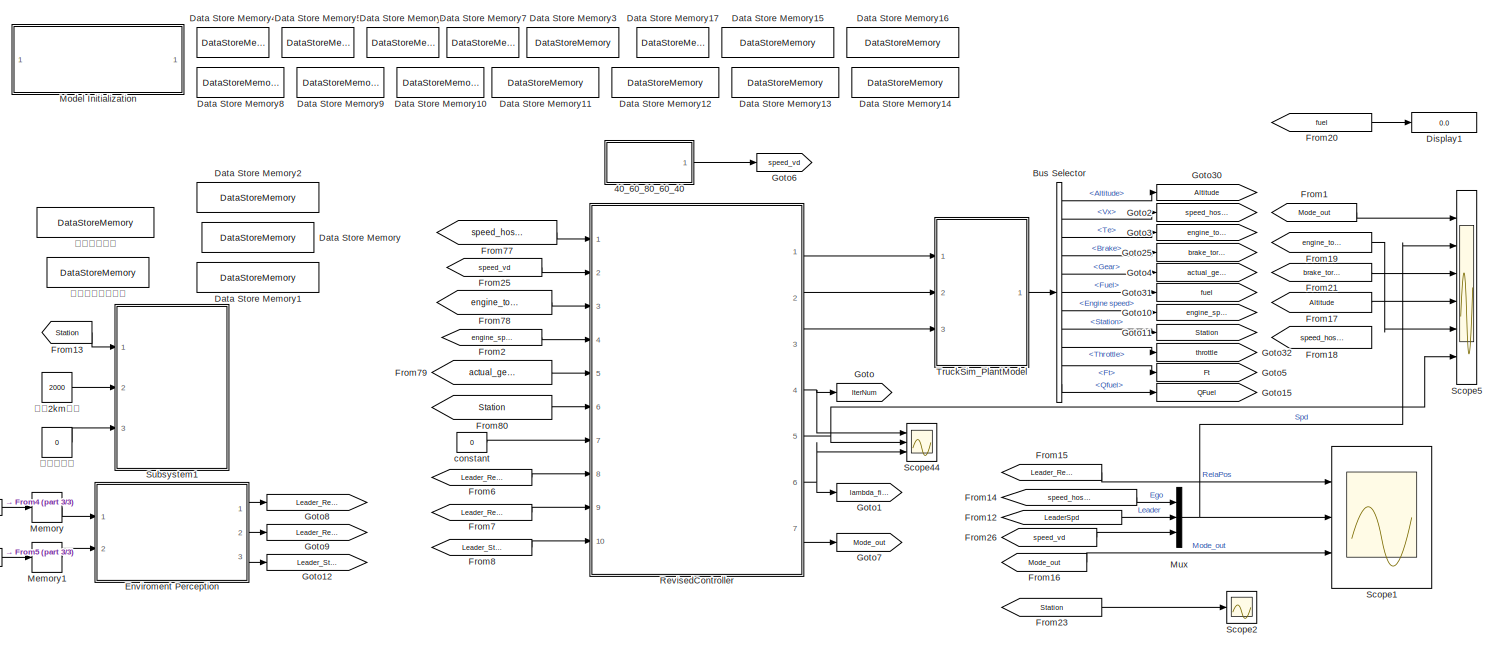
[diagram: root canvas - part 1/3, full width, middle band]
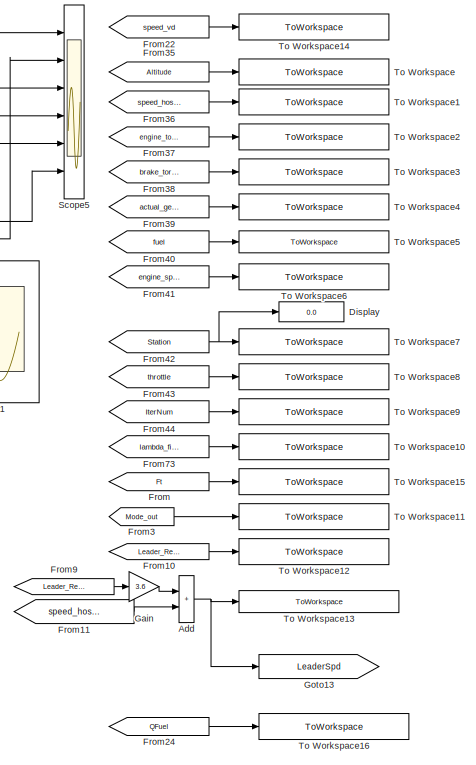
[diagram: root canvas - part 2/3, right side, full height]
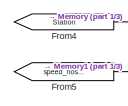
[diagram: root canvas - part 3/3, middle left region]
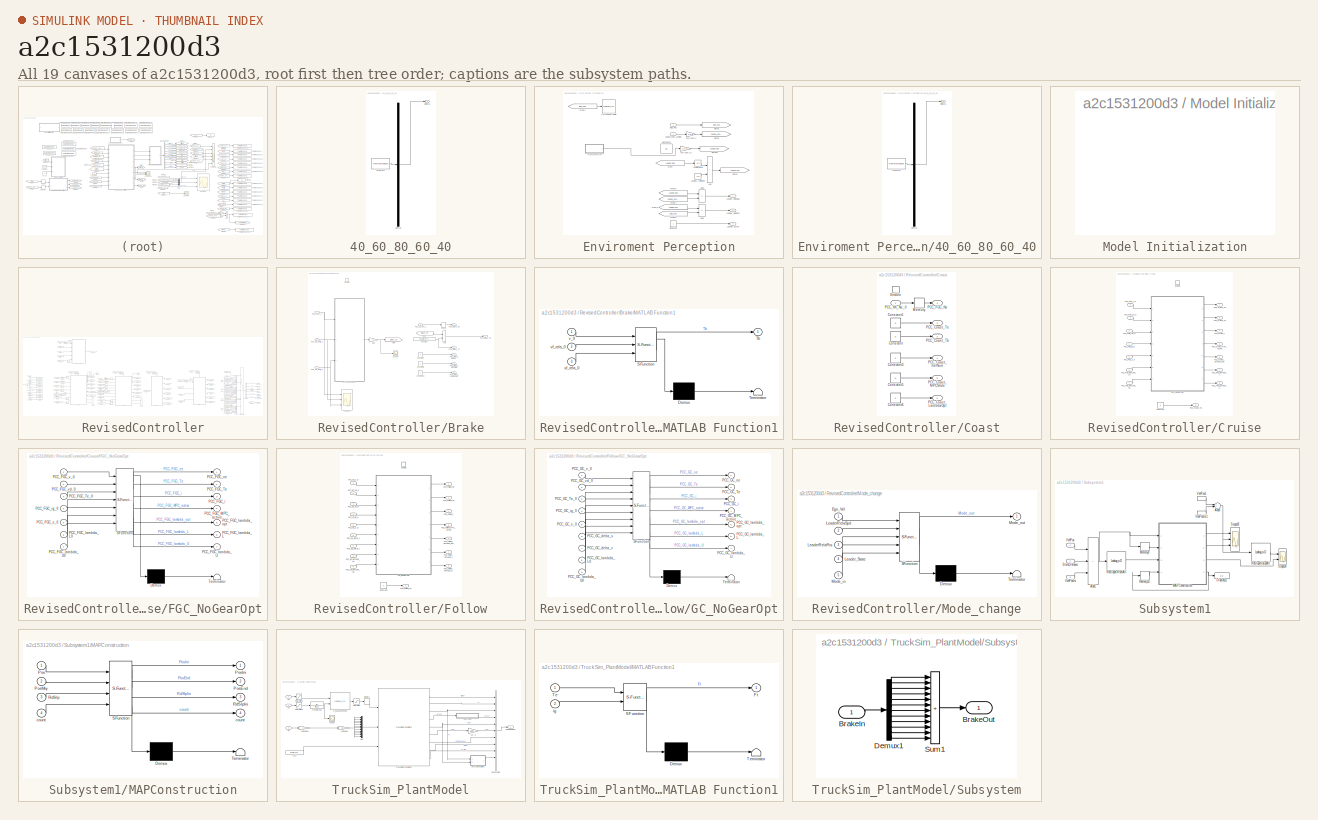
[diagram: thumbnail index - all 19 canvases of the model, root first then tree order]
MODEL slx_a2c1531200d3
KIND model
CONFIG AbsTol = auto
CONFIG EnableMultiTasking = off
CONFIG FixedStep = auto
CONFIG InitFcn = initial
CONFIG MaxStep = auto
CONFIG MinStep = auto
CONFIG PostLoadFcn = initial
CONFIG PreLoadFcn = initial
CONFIG RelTol = 1e-3
CONFIG SampleTimeConstraint = Unconstrained
CONFIG Solver = ode45
CONFIG SolverName = ode45
CONFIG StartTime = 0.0
CONFIG StopTime = 3000
WORKSPACE source: mxarray member
WORKSPACE Af: Simulink.Signal (value not decoded)
WORKSPACE CD: Simulink.Signal (value not decoded)
WORKSPACE Delta_t: Simulink.Signal (value not decoded)
WORKSPACE If: Simulink.Signal (value not decoded)
WORKSPACE Ig: Simulink.Signal (value not decoded)
WORKSPACE L00: Simulink.Signal (value not decoded)
WORKSPACE L01: Simulink.Signal (value not decoded)
WORKSPACE L02: Simulink.Signal (value not decoded)
WORKSPACE L10: Simulink.Signal (value not decoded)
WORKSPACE L11: Simulink.Signal (value not decoded)
WORKSPACE L12: Simulink.Signal (value not decoded)
WORKSPACE L20: Simulink.Signal (value not decoded)
WORKSPACE L21: Simulink.Signal (value not decoded)
WORKSPACE L22: Simulink.Signal (value not decoded)
WORKSPACE M: Simulink.Signal (value not decoded)
WORKSPACE Np: Simulink.Signal (value not decoded)
WORKSPACE Tb_min: Simulink.Signal (value not decoded)
WORKSPACE Te_max: Simulink.Signal (value not decoded)
WORKSPACE Te_min: Simulink.Signal (value not decoded)
WORKSPACE eta: Simulink.Signal (value not decoded)
WORKSPACE f: Simulink.Signal (value not decoded)
WORKSPACE g: Simulink.Signal (value not decoded)
WORKSPACE kappa_1: Simulink.Signal (value not decoded)
WORKSPACE kappa_2: Simulink.Signal (value not decoded)
WORKSPACE rho: Simulink.Signal (value not decoded)
WORKSPACE rw: Simulink.Signal (value not decoded)
BLOCK [SubSystem] 40_60_80_60_40
  ClipboardFcn = sigbuilder_block('clipboard');
  CloseFcn = sigbuilder_block('close');
  ContinueFcn = sigbuilder_block('continue');
  CopyFcn = sigbuilder_block('copy');
  DeleteFcn = sigbuilder_block('delete');
  LoadFcn = sigbuilder_block('load');
  MaskHideContents = on
  ModelCloseFcn = sigbuilder_block('modelClose');
  NameChangeFcn = sigbuilder_block('namechange');
  OpenFcn = sigbuilder_block('open',[0 30 1440 721.5 ]);
  PauseFcn = sigbuilder_block('pause');
  Ports = [0, 1]
  PreSaveFcn = sigbuilder_block('preSave');
  RequestExecContextInheritance = off
  StartFcn = sigbuilder_block('start');
  StopFcn = sigbuilder_block('stop');
  Tag = STV Subsys
BLOCK [Demux] 40_60_80_60_40/Demux
  DisplayOption = none
  Outputs = 1
  Ports = [1, 1]
  Tag = STV Demux
BLOCK [FromWorkspace] 40_60_80_60_40/FromWs
  Tag = STV FromWs
  VariableName = tuvar
BLOCK [Outport] 40_60_80_60_40/Signal 1
  Tag = STV Outport
BLOCK [Sum] Add
  IconShape = rectangular
  Ports = [2, 1]
BLOCK [BusSelector] Bus Selector
  OutputSignals = Altitude,Vx,Te,Brake,Gear,Fuel,Engine speed,Station,Throttle,Ft,Qfuel
  Ports = [1, 11]
BLOCK [DataStoreMemory] Data Store Memory
  DataStoreName = SpdLmtOffset_Para
  InitialValue = ParaMAP_RdSpdLimitOffset
  OutDataTypeStr = double
  ShowAdditionalParam = off
  SignalType = real
BLOCK [DataStoreMemory] Data Store Memory1
  DataStoreName = SpdLmtValueL_Para
  InitialValue = ParaMAP_RdSpdLimitL
  OutDataTypeStr = double
  ShowAdditionalParam = off
  SignalType = real
BLOCK [DataStoreMemory] Data Store Memory10
  DataStoreName = EngMinTrq_Para
  InitialValue = EngMinTrq_Para_Value
  OutDataTypeStr = double
  ReadBeforeWriteMsg = warning
  ShowAdditionalParam = off
  SignalType = real
  WriteAfterReadMsg = warning
  WriteAfterWriteMsg = warning
BLOCK [DataStoreMemory] Data Store Memory11
  DataStoreName = EngMaxTrqFit_Para1
  InitialValue = EngMaxTrqFit_Para_Value1
  OutDataTypeStr = double
  ReadBeforeWriteMsg = warning
  ShowAdditionalParam = off
  SignalType = real
  WriteAfterReadMsg = warning
  WriteAfterWriteMsg = warning
BLOCK [DataStoreMemory] Data Store Memory12
  DataStoreName = EngMaxTrqFit_Para2
  InitialValue = EngMaxTrqFit_Para_Value2
  OutDataTypeStr = double
  ReadBeforeWriteMsg = warning
  ShowAdditionalParam = off
  SignalType = real
  WriteAfterReadMsg = warning
  WriteAfterWriteMsg = warning
BLOCK [DataStoreMemory] Data Store Memory13
  DataStoreName = EngMaxTrqFit_Para3
  InitialValue = EngMaxTrqFit_Para_Value3
  OutDataTypeStr = double
  ReadBeforeWriteMsg = warning
  ShowAdditionalParam = off
  SignalType = real
  WriteAfterReadMsg = warning
  WriteAfterWriteMsg = warning
BLOCK [DataStoreMemory] Data Store Memory14
  DataStoreName = EngMaxTrqFit_Para4
  InitialValue = EngMaxTrqFit_Para_Value4
  OutDataTypeStr = double
  ReadBeforeWriteMsg = warning
  ShowAdditionalParam = off
  SignalType = real
  WriteAfterReadMsg = warning
  WriteAfterWriteMsg = warning
BLOCK [DataStoreMemory] Data Store Memory15
  DataStoreName = ParaValue_Schedule
  InitialValue = ParaValue_Schedule
  OutDataTypeStr = double
  ReadBeforeWriteMsg = warning
  ShowAdditionalParam = off
  SignalType = real
  WriteAfterReadMsg = warning
  WriteAfterWriteMsg = warning
BLOCK [DataStoreMemory] Data Store Memory16
  DataStoreName = ParaValue_Brake
  InitialValue = ParaValue_Brake
  OutDataTypeStr = double
  ReadBeforeWriteMsg = warning
  ShowAdditionalParam = off
  SignalType = real
  WriteAfterReadMsg = warning
  WriteAfterWriteMsg = warning
BLOCK [DataStoreMemory] Data Store Memory17
  DataStoreName = Follow_Con_Para
  InitialValue = Follow_Con_Para_Value
  OutDataTypeStr = double
  ReadBeforeWriteMsg = warning
  ShowAdditionalParam = off
  SignalType = real
  WriteAfterReadMsg = warning
  WriteAfterWriteMsg = warning
BLOCK [DataStoreMemory] Data Store Memory2
  DataStoreName = SpdLmtValueU_Para
  InitialValue = ParaMAP_RdSpdLimitU
  OutDataTypeStr = double
  ShowAdditionalParam = off
  SignalType = real
BLOCK [DataStoreMemory] Data Store Memory3
  DataStoreName = Cruise_Con_Para
  InitialValue = Cruise_Con_Para_Value
  OutDataTypeStr = double
  ReadBeforeWriteMsg = warning
  ShowAdditionalParam = off
  SignalType = real
  WriteAfterReadMsg = warning
  WriteAfterWriteMsg = warning
BLOCK [DataStoreMemory] Data Store Memory4
  DataStoreName = Veh_Para
  InitialValue = Veh_Para_Value
  OutDataTypeStr = double
  ReadBeforeWriteMsg = warning
  ShowAdditionalParam = off
  SignalType = real
  WriteAfterReadMsg = warning
  WriteAfterWriteMsg = warning
BLOCK [DataStoreMemory] Data Store Memory5
  DataStoreName = FuelRate_Para
  InitialValue = FuelRate_Para_Value
  OutDataTypeStr = double
  ReadBeforeWriteMsg = warning
  ShowAdditionalParam = off
  SignalType = real
  WriteAfterReadMsg = warning
  WriteAfterWriteMsg = warning
BLOCK [DataStoreMemory] Data Store Memory6
  DataStoreName = Trans_Para
  InitialValue = Trans_Para_Value
  OutDataTypeStr = double
  ReadBeforeWriteMsg = warning
  ShowAdditionalParam = off
  SignalType = real
  WriteAfterReadMsg = warning
  WriteAfterWriteMsg = warning
BLOCK [DataStoreMemory] Data Store Memory7
  DataStoreName = GearIni_Para
  InitialValue = GearIni_Para_Value
  OutDataTypeStr = double
  ReadBeforeWriteMsg = warning
  ShowAdditionalParam = off
  SignalType = real
  WriteAfterReadMsg = warning
  WriteAfterWriteMsg = warning
BLOCK [DataStoreMemory] Data Store Memory8
  DataStoreName = EngMaxSpd_Para
  InitialValue = EngMaxSpd_Para_Value
  OutDataTypeStr = double
  ReadBeforeWriteMsg = warning
  ShowAdditionalParam = off
  SignalType = real
  WriteAfterReadMsg = warning
  WriteAfterWriteMsg = warning
BLOCK [DataStoreMemory] Data Store Memory9
  DataStoreName = EngMaxTrq_Para
  InitialValue = EngMaxTrq_Para_Value
  OutDataTypeStr = double
  ReadBeforeWriteMsg = warning
  ShowAdditionalParam = off
  SignalType = real
  WriteAfterReadMsg = warning
  WriteAfterWriteMsg = warning
BLOCK [Display] Display
  Decimation = 1
  Format = bank
  Ports = [1]
BLOCK [Display] Display1
  Decimation = 1
  Format = bank
  Ports = [1]
BLOCK [SubSystem] Enviroment Perception
  Ports = [2, 3]
  RequestExecContextInheritance = off
BLOCK [Lookup_n-D] Enviroment Perception/1-D Lookup Table
  BreakpointsForDimension1 = Rd_Pos
  InternalRulePriority = Speed
  NumberOfTableDimensions = 1
  Ports = [1, 1]
  RndMeth = Simplest
  Table = Rd_LeaderSpd
BLOCK [SubSystem] Enviroment Perception/40_60_80_60_40
  ClipboardFcn = sigbuilder_block('clipboard');
  CloseFcn = sigbuilder_block('close');
  ContinueFcn = sigbuilder_block('continue');
  CopyFcn = sigbuilder_block('copy');
  DeleteFcn = sigbuilder_block('delete');
  LoadFcn = sigbuilder_block('load');
  MaskHideContents = on
  ModelCloseFcn = sigbuilder_block('modelClose');
  NameChangeFcn = sigbuilder_block('namechange');
  OpenFcn = sigbuilder_block('open',[6 30 1428 680.25 ]);
  PauseFcn = sigbuilder_block('pause');
  Ports = [0, 1]
  PreSaveFcn = sigbuilder_block('preSave');
  RequestExecContextInheritance = off
  StartFcn = sigbuilder_block('start');
  StopFcn = sigbuilder_block('stop');
  Tag = STV Subsys
BLOCK [Demux] Enviroment Perception/40_60_80_60_40/Demux
  DisplayOption = none
  Outputs = 1
  Ports = [1, 1]
  Tag = STV Demux
BLOCK [FromWorkspace] Enviroment Perception/40_60_80_60_40/FromWs
  Tag = STV FromWs
  VariableName = tuvar
BLOCK [Outport] Enviroment Perception/40_60_80_60_40/Signal 1
  Tag = STV Outport
BLOCK [Sum] Enviroment Perception/Add
  IconShape = rectangular
  Ports = [2, 1]
BLOCK [Sum] Enviroment Perception/Add1
  IconShape = rectangular
  Inputs = +-
  Ports = [2, 1]
BLOCK [Sum] Enviroment Perception/Add2
  IconShape = rectangular
  Inputs = +-
  Ports = [2, 1]
BLOCK [Constant] Enviroment Perception/Constant
BLOCK [Constant] Enviroment Perception/Constant1
  Value = 70
BLOCK [Inport] Enviroment Perception/Ego_Pos
BLOCK [From] Enviroment Perception/From
  GotoTag = LeaderSpd
BLOCK [From] Enviroment Perception/From1
  GotoTag = Ego_Pos
BLOCK [From] Enviroment Perception/From2
  GotoTag = LeaderPos
BLOCK [From] Enviroment Perception/From3
  GotoTag = Ego_Pos
BLOCK [From] Enviroment Perception/From4
  GotoTag = speed_host_vehicle
BLOCK [From] Enviroment Perception/From5
  GotoTag = LeaderSpd
BLOCK [Goto] Enviroment Perception/Goto1
  GotoTag = LeaderPos
BLOCK [Goto] Enviroment Perception/Goto2
  GotoTag = Ego_Pos
BLOCK [Goto] Enviroment Perception/Goto3
  GotoTag = speed_host_vehicle
BLOCK [Goto] Enviroment Perception/Goto36
  GotoTag = LeaderSpd
BLOCK [Integrator] Enviroment Perception/Integrator
  Ports = [1, 1]
BLOCK [Constant] Enviroment Perception/Leader_InitialPos
  Value = 120
BLOCK [Outport] Enviroment Perception/Leader_RelaPos
  Port = 2
BLOCK [Outport] Enviroment Perception/Leader_RelaSpd
BLOCK [Outport] Enviroment Perception/Leader_State
  Port = 3
BLOCK [Gain] Enviroment Perception/km//h2m//s
  Gain = 1/3.6
BLOCK [Gain] Enviroment Perception/km//h2m//s1
  Gain = 1/3.6
BLOCK [Inport] Enviroment Perception/speed_host_vehicle
  Port = 2
BLOCK [From] From
  GotoTag = Ft
BLOCK [From] From1
  GotoTag = Mode_out
BLOCK [From] From10
  GotoTag = Leader_RelaPos
BLOCK [From] From11
  GotoTag = speed_host_vehicle
BLOCK [From] From12
  GotoTag = LeaderSpd
BLOCK [From] From13
  GotoTag = Station
BLOCK [From] From14
  GotoTag = speed_host_vehicle
BLOCK [From] From15
  GotoTag = Leader_RelaPos
BLOCK [From] From16
  GotoTag = Mode_out
BLOCK [From] From17
  GotoTag = Altitude
BLOCK [From] From18
  GotoTag = speed_host_vehicle
BLOCK [From] From19
  GotoTag = engine_torque
BLOCK [From] From2
  GotoTag = engine_speed
BLOCK [From] From20
  GotoTag = fuel
BLOCK [From] From21
  GotoTag = brake_torque
BLOCK [From] From22
  GotoTag = speed_vd
BLOCK [From] From23
  GotoTag = Station
BLOCK [From] From24
  GotoTag = QFuel
BLOCK [From] From25
  GotoTag = speed_vd
BLOCK [From] From26
  GotoTag = speed_vd
BLOCK [From] From3
  GotoTag = Mode_out
BLOCK [From] From35
  GotoTag = Altitude
BLOCK [From] From36
  GotoTag = speed_host_vehicle
BLOCK [From] From37
  GotoTag = engine_torque
BLOCK [From] From38
  GotoTag = brake_torque
BLOCK [From] From39
  GotoTag = actual_gear
BLOCK [From] From4
  GotoTag = Station
BLOCK [From] From40
  GotoTag = fuel
BLOCK [From] From41
  GotoTag = engine_speed
BLOCK [From] From42
  GotoTag = Station
BLOCK [From] From43
  GotoTag = throttle
BLOCK [From] From44
  GotoTag = IterNum
BLOCK [From] From5
  GotoTag = speed_host_vehicle
BLOCK [From] From6
  GotoTag = Leader_RelaSpd
BLOCK [From] From7
  GotoTag = Leader_RelaPos
BLOCK [From] From73
  GotoTag = lambda_first
BLOCK [From] From77
  GotoTag = speed_host_vehicle
BLOCK [From] From78
  GotoTag = engine_torque
BLOCK [From] From79
  GotoTag = actual_gear
BLOCK [From] From8
  GotoTag = Leader_State
BLOCK [From] From80
  GotoTag = Station
BLOCK [From] From9
  GotoTag = Leader_RelaSpd
BLOCK [Gain] Gain
  Gain = 3.6
BLOCK [Goto] Goto
  GotoTag = IterNum
BLOCK [Goto] Goto1
  GotoTag = lambda_first
BLOCK [Goto] Goto10
  GotoTag = engine_speed
BLOCK [Goto] Goto11
  GotoTag = Station
BLOCK [Goto] Goto12
  GotoTag = Leader_State
BLOCK [Goto] Goto13
  GotoTag = LeaderSpd
BLOCK [Goto] Goto15
  GotoTag = QFuel
BLOCK [Goto] Goto2
  GotoTag = speed_host_vehicle
BLOCK [Goto] Goto25
  GotoTag = brake_torque
BLOCK [Goto] Goto3
  GotoTag = engine_torque
BLOCK [Goto] Goto30
  GotoTag = Altitude
BLOCK [Goto] Goto31
  GotoTag = fuel
BLOCK [Goto] Goto32
  GotoTag = throttle
BLOCK [Goto] Goto4
  GotoTag = actual_gear
BLOCK [Goto] Goto5
  GotoTag = Ft
BLOCK [Goto] Goto6
  GotoTag = speed_vd
BLOCK [Goto] Goto7
  GotoTag = Mode_out
BLOCK [Goto] Goto8
  GotoTag = Leader_RelaSpd
BLOCK [Goto] Goto9
  GotoTag = Leader_RelaPos
BLOCK [Memory] Memory
BLOCK [Memory] Memory1
  InitialCondition = 60
BLOCK [SubSystem] Model Initialization
  AncestorBlock = artemis/Tools /Misc/Model Initialization
  CopyFcn = set_param(gcb,'LinkStatus','inactive')
  Ports = []
  RequestExecContextInheritance = off
BLOCK [Mux] Mux
  DisplayOption = bar
  Inputs = 3
  Ports = [3, 1]
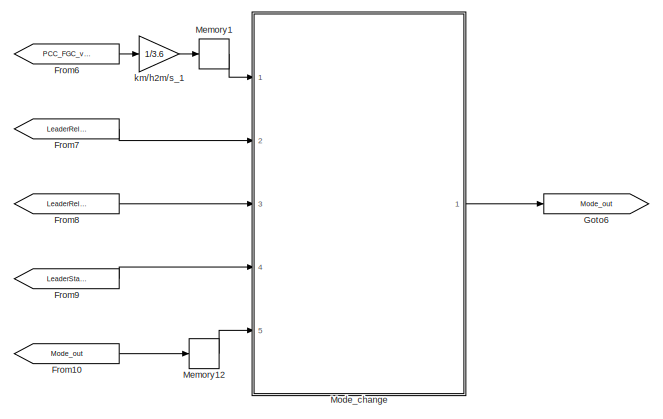
[diagram: RevisedController - part 1/5, top left region]
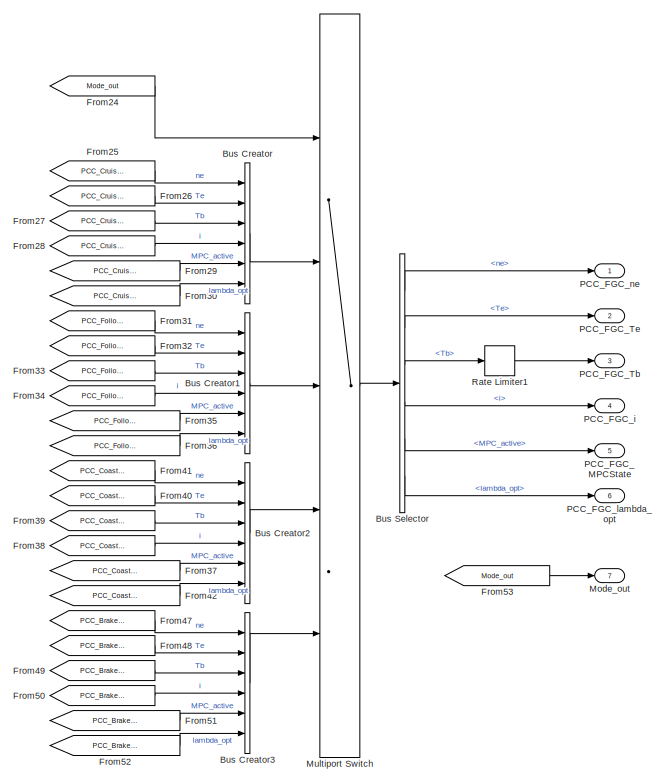
[diagram: RevisedController - part 2/5, bottom right region]
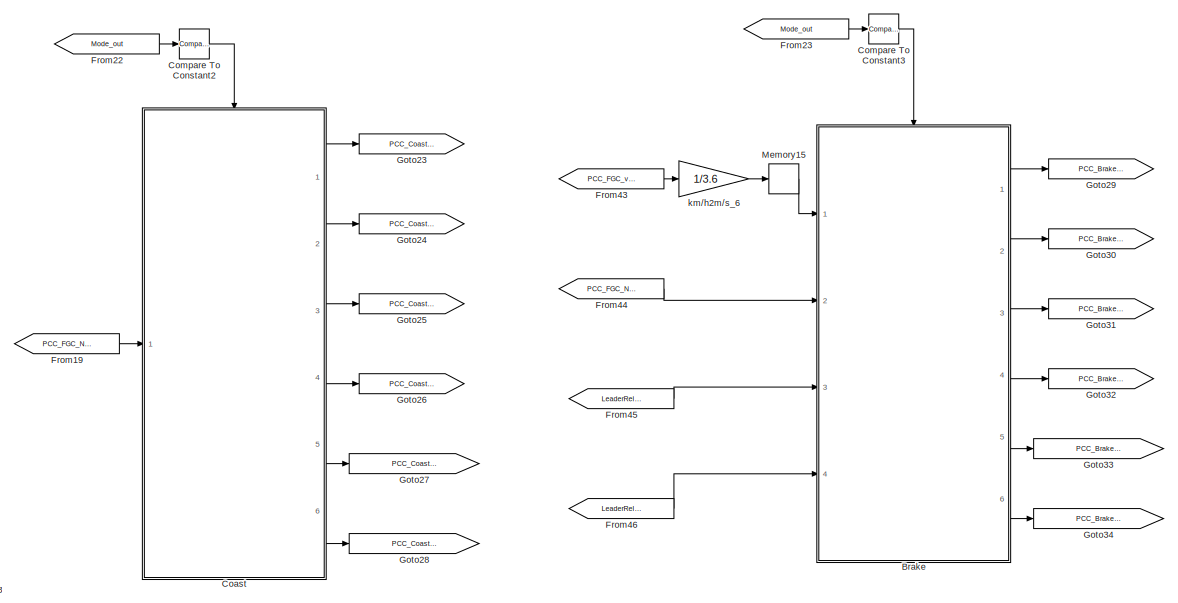
[diagram: RevisedController - part 3/5, central region]
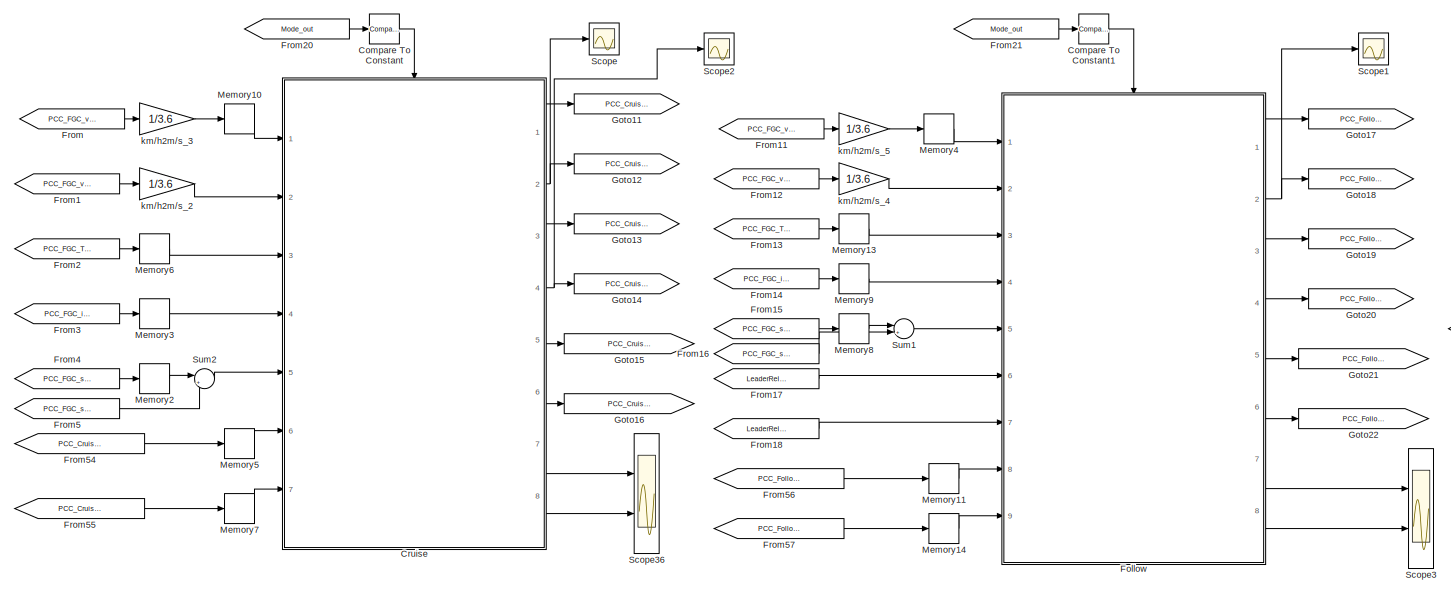
[diagram: RevisedController - part 4/5, middle left region]
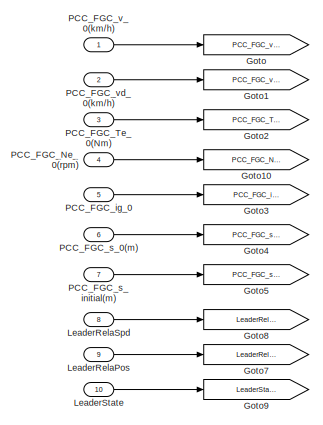
[diagram: RevisedController - part 5/5, middle left region]
BLOCK [SubSystem] RevisedController
  Ports = [10, 7]
  RequestExecContextInheritance = off
BLOCK [SubSystem] RevisedController/Brake
  Ports = [4, 6, 1]
  RequestExecContextInheritance = off
BLOCK [Sum] RevisedController/Brake/Add
  IconShape = rectangular
  Ports = [2, 1]
BLOCK [Constant] RevisedController/Brake/Constant
  Value = EngMinTrq_Para_Value
BLOCK [Constant] RevisedController/Brake/Constant10
  Value = 0
BLOCK [Constant] RevisedController/Brake/Constant7
  Value = 0
BLOCK [Constant] RevisedController/Brake/Constant8
  Value = 0
BLOCK [EnablePort] RevisedController/Brake/Enable
  Ports = []
BLOCK [From] RevisedController/Brake/From
  GotoTag = Brake_Tb
BLOCK [Gain] RevisedController/Brake/Gain
  Gain = -1
BLOCK [Goto] RevisedController/Brake/Goto
  GotoTag = Brake_Tb
BLOCK [SubSystem] RevisedController/Brake/MATLAB Function1
  ErrorFcn = Stateflow.Translate.translate
  PermitHierarchicalResolution = ExplicitOnly
  Ports = [3, 1]
  RequestExecContextInheritance = off
  SFBlockType = MATLAB Function
  TreatAsAtomicUnit = on
BLOCK [Demux] RevisedController/Brake/MATLAB Function1/ Demux 
  Outputs = 1
  Ports = [1, 1]
BLOCK [S-Function] RevisedController/Brake/MATLAB Function1/ SFunction 
  EnableBusSupport = on
  FunctionName = sf_sfun
  PortCounts = [3 2]
  Ports = [3, 2]
  SFcnIsStateOwnerBlock = off
  SFunctionDeploymentMode = off
  Tag = Stateflow S-Function 3
BLOCK [Terminator] RevisedController/Brake/MATLAB Function1/ Terminator 
BLOCK [Outport] RevisedController/Brake/MATLAB Function1/Tb
BLOCK [Inport] RevisedController/Brake/MATLAB Function1/sf_rela_0
  Port = 3
BLOCK [Inport] RevisedController/Brake/MATLAB Function1/v_0
BLOCK [Inport] RevisedController/Brake/MATLAB Function1/vf_rela_0
  Port = 2
BLOCK [Memory] RevisedController/Brake/Memory
BLOCK [Outport] RevisedController/Brake/PCC_Brake_IterNum
  Port = 4
BLOCK [Outport] RevisedController/Brake/PCC_Brake_LambdaOpt
  Port = 6
BLOCK [Outport] RevisedController/Brake/PCC_Brake_MPCState
  Port = 5
BLOCK [Outport] RevisedController/Brake/PCC_Brake_Ne
BLOCK [Outport] RevisedController/Brake/PCC_Brake_Tb
  Port = 3
BLOCK [Outport] RevisedController/Brake/PCC_Brake_Te
  Port = 2
BLOCK [Inport] RevisedController/Brake/PCC_ZD_Ne_0
  Port = 2
BLOCK [Inport] RevisedController/Brake/PCC_ZD_delta_s
  Port = 4
BLOCK [Inport] RevisedController/Brake/PCC_ZD_delta_v
  Port = 3
BLOCK [Inport] RevisedController/Brake/PCC_ZD_v_0
BLOCK [Scope] RevisedController/Brake/Scope1
  Floating = off
  NumInputPorts = 3
  Ports = [3]
  ScopeSpecificationString = Simulink.scopes.TimeScopeBlockCfg('CurrentConfiguration', extmgr.ConfigurationSet(extmgr.Configuration('Core','General UI',true),extmgr.Configuration('Core','Source UI',true),extmgr.Configuration('Sources','WiredSimulink',true,'DataLoggingVariableName','ScopeData2'),extmgr.Configuration('Visuals','Time Domain',true,'SerializedDisplays',{struct('MinYLimReal','18.88772','MaxYLimReal','22.57237','YLa...<+2902ch>
BLOCK [Scope] RevisedController/Brake/Scope2
  Floating = off
  NumInputPorts = 1
  Ports = [1]
  ScopeSpecificationString = Simulink.scopes.TimeScopeBlockCfg('CurrentConfiguration', extmgr.ConfigurationSet(extmgr.Configuration('Core','General UI',true),extmgr.Configuration('Core','Source UI',true),extmgr.Configuration('Sources','WiredSimulink',true,'DataLoggingVariableName','ScopeData1'),extmgr.Configuration('Visuals','Time Domain',true,'SerializedDisplays',{struct('MinYLimReal','3207.04177','MaxYLimReal','4216.32845',...<+1534ch>
BLOCK [BusCreator] RevisedController/Bus Creator
  DisplayOption = bar
  InheritFromInputs = on
  Inputs = 6
  Ports = [6, 1]
BLOCK [BusCreator] RevisedController/Bus Creator1
  DisplayOption = bar
  InheritFromInputs = on
  Inputs = 6
  Ports = [6, 1]
BLOCK [BusCreator] RevisedController/Bus Creator2
  DisplayOption = bar
  InheritFromInputs = on
  Inputs = 6
  Ports = [6, 1]
BLOCK [BusCreator] RevisedController/Bus Creator3
  DisplayOption = bar
  InheritFromInputs = on
  Inputs = 6
  Ports = [6, 1]
BLOCK [BusSelector] RevisedController/Bus Selector
  OutputSignals = ne,Te,Tb,i,MPC_active,lambda_opt
  Ports = [1, 6]
BLOCK [SubSystem] RevisedController/Coast
  Ports = [1, 6, 1]
  RequestExecContextInheritance = off
  TreatAsAtomicUnit = on
BLOCK [Constant] RevisedController/Coast/Constant
  Value = 0
BLOCK [Constant] RevisedController/Coast/Constant1
  Value = 0
BLOCK [Constant] RevisedController/Coast/Constant3
  Value = 0
BLOCK [Constant] RevisedController/Coast/Constant5
  Value = 0
BLOCK [Constant] RevisedController/Coast/Constant6
  Value = 0
BLOCK [EnablePort] RevisedController/Coast/Enable
  Ports = []
BLOCK [Memory] RevisedController/Coast/Memory
BLOCK [Outport] RevisedController/Coast/PCC_Coast_IterNum
  Port = 4
BLOCK [Outport] RevisedController/Coast/PCC_Coast_LambdaOpt
  Port = 6
BLOCK [Outport] RevisedController/Coast/PCC_Coast_MPCState
  Port = 5
BLOCK [Outport] RevisedController/Coast/PCC_Coast_Tb
  Port = 3
BLOCK [Outport] RevisedController/Coast/PCC_Coast_Te
  Port = 2
BLOCK [Outport] RevisedController/Coast/PCC_FGC_Ne
BLOCK [Inport] RevisedController/Coast/PCC_HX_Ne_0
BLOCK [Reference] RevisedController/Compare To Constant  REF=simulink/Logic and Bit
Operations/Compare
To Constant
  Ports = [1, 1]
  SourceBlock = simulink/Logic and Bit\nOperations/Compare\nTo Constant
  SourceProductBaseCode = SL
  SourceType = Compare To Constant
BLOCK [Reference] RevisedController/Compare To Constant1  REF=simulink/Logic and Bit
Operations/Compare
To Constant
  Ports = [1, 1]
  SourceBlock = simulink/Logic and Bit\nOperations/Compare\nTo Constant
  SourceProductBaseCode = SL
  SourceType = Compare To Constant
BLOCK [Reference] RevisedController/Compare To Constant2  REF=simulink/Logic and Bit
Operations/Compare
To Constant
  Ports = [1, 1]
  SourceBlock = simulink/Logic and Bit\nOperations/Compare\nTo Constant
  SourceProductBaseCode = SL
  SourceType = Compare To Constant
BLOCK [Reference] RevisedController/Compare To Constant3  REF=simulink/Logic and Bit
Operations/Compare
To Constant
  Ports = [1, 1]
  SourceBlock = simulink/Logic and Bit\nOperations/Compare\nTo Constant
  SourceProductBaseCode = SL
  SourceType = Compare To Constant
BLOCK [SubSystem] RevisedController/Cruise
  Ports = [7, 8, 1]
  RequestExecContextInheritance = off
BLOCK [Constant] RevisedController/Cruise/Constant
  Value = 0
BLOCK [EnablePort] RevisedController/Cruise/Enable
  Ports = []
BLOCK [SubSystem] RevisedController/Cruise/FGC_NoGearOpt
  ErrorFcn = Stateflow.Translate.translate
  PermitHierarchicalResolution = ExplicitOnly
  Ports = [7, 7]
  RequestExecContextInheritance = off
  SFBlockType = MATLAB Function
  TreatAsAtomicUnit = on
BLOCK [Demux] RevisedController/Cruise/FGC_NoGearOpt/ Demux 
  Outputs = 1
  Ports = [1, 1]
BLOCK [S-Function] RevisedController/Cruise/FGC_NoGearOpt/ SFunction 
  EnableBusSupport = on
  FunctionName = sf_sfun
  PortCounts = [7 8]
  Ports = [7, 8]
  SFcnIsStateOwnerBlock = off
  SFunctionDeploymentMode = off
  Tag = Stateflow S-Function 31
BLOCK [Terminator] RevisedController/Cruise/FGC_NoGearOpt/ Terminator 
BLOCK [Outport] RevisedController/Cruise/FGC_NoGearOpt/PCC_FGC_MPC_active
  Port = 4
  VectorParamsAs1DForOutWhenUnconnected = off
BLOCK [Outport] RevisedController/Cruise/FGC_NoGearOpt/PCC_FGC_Te
  Port = 2
  VectorParamsAs1DForOutWhenUnconnected = off
BLOCK [Inport] RevisedController/Cruise/FGC_NoGearOpt/PCC_FGC_Te_0
  Port = 3
BLOCK [Outport] RevisedController/Cruise/FGC_NoGearOpt/PCC_FGC_i
  Port = 3
  VectorParamsAs1DForOutWhenUnconnected = off
BLOCK [Inport] RevisedController/Cruise/FGC_NoGearOpt/PCC_FGC_ig_0
  Port = 4
BLOCK [Outport] RevisedController/Cruise/FGC_NoGearOpt/PCC_FGC_lambda_L
  Port = 6
BLOCK [Inport] RevisedController/Cruise/FGC_NoGearOpt/PCC_FGC_lambda_L0
  Port = 6
BLOCK [Outport] RevisedController/Cruise/FGC_NoGearOpt/PCC_FGC_lambda_U
  Port = 7
  VectorParamsAs1DForOutWhenUnconnected = off
BLOCK [Inport] RevisedController/Cruise/FGC_NoGearOpt/PCC_FGC_lambda_U0
  Port = 7
BLOCK [Outport] RevisedController/Cruise/FGC_NoGearOpt/PCC_FGC_lambda_opt
  Port = 5
BLOCK [Outport] RevisedController/Cruise/FGC_NoGearOpt/PCC_FGC_ne
  VectorParamsAs1DForOutWhenUnconnected = off
BLOCK [Inport] RevisedController/Cruise/FGC_NoGearOpt/PCC_FGC_s_0
  Port = 5
BLOCK [Inport] RevisedController/Cruise/FGC_NoGearOpt/PCC_FGC_v_0
BLOCK [Inport] RevisedController/Cruise/FGC_NoGearOpt/PCC_FGC_vd_0
  Port = 2
BLOCK [Outport] RevisedController/Cruise/PCC_Cruise_MPC_active
  Port = 5
BLOCK [Outport] RevisedController/Cruise/PCC_Cruise_Tb
  Port = 3
BLOCK [Outport] RevisedController/Cruise/PCC_Cruise_Te
  Port = 2
BLOCK [Outport] RevisedController/Cruise/PCC_Cruise_i
  Port = 4
BLOCK [Outport] RevisedController/Cruise/PCC_Cruise_lambda_opt
  Port = 6
BLOCK [Outport] RevisedController/Cruise/PCC_Cruise_ne
BLOCK [Inport] RevisedController/Cruise/PCC_FGC_Te_0
  Port = 3
BLOCK [Inport] RevisedController/Cruise/PCC_FGC_ig_0
  Port = 4
BLOCK [Outport] RevisedController/Cruise/PCC_FGC_lambda_L
  Port = 7
BLOCK [Inport] RevisedController/Cruise/PCC_FGC_lambda_L0
  Port = 6
BLOCK [Outport] RevisedController/Cruise/PCC_FGC_lambda_U
  Port = 8
BLOCK [Inport] RevisedController/Cruise/PCC_FGC_lambda_U0
  Port = 7
BLOCK [Inport] RevisedController/Cruise/PCC_FGC_s_0
  Port = 5
BLOCK [Inport] RevisedController/Cruise/PCC_FGC_v_0
BLOCK [Inport] RevisedController/Cruise/PCC_FGC_vd_0
  Port = 2
BLOCK [SubSystem] RevisedController/Follow
  Ports = [9, 8, 1]
  RequestExecContextInheritance = off
BLOCK [Constant] RevisedController/Follow/Constant
  Value = 0
BLOCK [EnablePort] RevisedController/Follow/Enable
  Ports = []
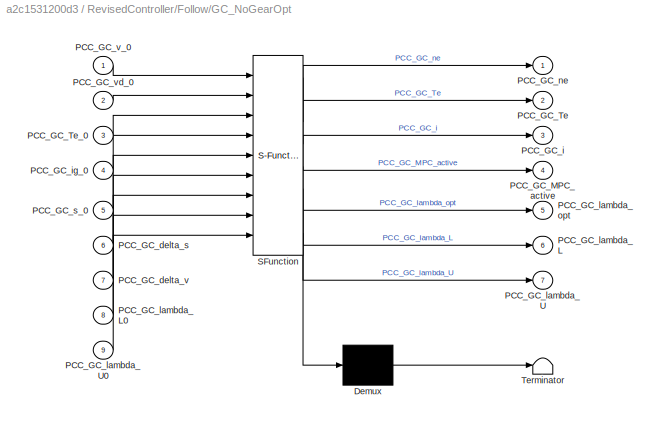
BLOCK [SubSystem] RevisedController/Follow/GC_NoGearOpt
  ErrorFcn = Stateflow.Translate.translate
  PermitHierarchicalResolution = ExplicitOnly
  Ports = [9, 7]
  RequestExecContextInheritance = off
  SFBlockType = MATLAB Function
  TreatAsAtomicUnit = on
BLOCK [Demux] RevisedController/Follow/GC_NoGearOpt/ Demux 
  Outputs = 1
  Ports = [1, 1]
BLOCK [S-Function] RevisedController/Follow/GC_NoGearOpt/ SFunction 
  EnableBusSupport = on
  FunctionName = sf_sfun
  PortCounts = [9 8]
  Ports = [9, 8]
  SFcnIsStateOwnerBlock = off
  SFunctionDeploymentMode = off
  Tag = Stateflow S-Function 2
BLOCK [Terminator] RevisedController/Follow/GC_NoGearOpt/ Terminator 
BLOCK [Outport] RevisedController/Follow/GC_NoGearOpt/PCC_GC_MPC_active
  Port = 4
  VectorParamsAs1DForOutWhenUnconnected = off
BLOCK [Outport] RevisedController/Follow/GC_NoGearOpt/PCC_GC_Te
  Port = 2
  VectorParamsAs1DForOutWhenUnconnected = off
BLOCK [Inport] RevisedController/Follow/GC_NoGearOpt/PCC_GC_Te_0
  Port = 3
BLOCK [Inport] RevisedController/Follow/GC_NoGearOpt/PCC_GC_delta_s
  Port = 6
BLOCK [Inport] RevisedController/Follow/GC_NoGearOpt/PCC_GC_delta_v
  Port = 7
BLOCK [Outport] RevisedController/Follow/GC_NoGearOpt/PCC_GC_i
  Port = 3
  VectorParamsAs1DForOutWhenUnconnected = off
BLOCK [Inport] RevisedController/Follow/GC_NoGearOpt/PCC_GC_ig_0
  Port = 4
BLOCK [Outport] RevisedController/Follow/GC_NoGearOpt/PCC_GC_lambda_L
  Port = 6
BLOCK [Inport] RevisedController/Follow/GC_NoGearOpt/PCC_GC_lambda_L0
  Port = 8
BLOCK [Outport] RevisedController/Follow/GC_NoGearOpt/PCC_GC_lambda_U
  Port = 7
  VectorParamsAs1DForOutWhenUnconnected = off
BLOCK [Inport] RevisedController/Follow/GC_NoGearOpt/PCC_GC_lambda_U0
  Port = 9
BLOCK [Outport] RevisedController/Follow/GC_NoGearOpt/PCC_GC_lambda_opt
  Port = 5
BLOCK [Outport] RevisedController/Follow/GC_NoGearOpt/PCC_GC_ne
  VectorParamsAs1DForOutWhenUnconnected = off
BLOCK [Inport] RevisedController/Follow/GC_NoGearOpt/PCC_GC_s_0
  Port = 5
BLOCK [Inport] RevisedController/Follow/GC_NoGearOpt/PCC_GC_v_0
BLOCK [Inport] RevisedController/Follow/GC_NoGearOpt/PCC_GC_vd_0
  Port = 2
BLOCK [Outport] RevisedController/Follow/PCC_Follow_MPC_active
  Port = 5
BLOCK [Outport] RevisedController/Follow/PCC_Follow_Tb
  Port = 3
BLOCK [Outport] RevisedController/Follow/PCC_Follow_Te
  Port = 2
BLOCK [Outport] RevisedController/Follow/PCC_Follow_i
  Port = 4
BLOCK [Outport] RevisedController/Follow/PCC_Follow_lambda_L
  Port = 7
BLOCK [Outport] RevisedController/Follow/PCC_Follow_lambda_U
  Port = 8
BLOCK [Outport] RevisedController/Follow/PCC_Follow_lambda_opt
  Port = 6
BLOCK [Outport] RevisedController/Follow/PCC_Follow_ne
BLOCK [Inport] RevisedController/Follow/PCC_GC_Te_0
  Port = 3
BLOCK [Inport] RevisedController/Follow/PCC_GC_delta_s
  Port = 6
BLOCK [Inport] RevisedController/Follow/PCC_GC_delta_v
  Port = 7
BLOCK [Inport] RevisedController/Follow/PCC_GC_ig_0
  Port = 4
BLOCK [Inport] RevisedController/Follow/PCC_GC_lambda_L0
  Port = 8
BLOCK [Inport] RevisedController/Follow/PCC_GC_lambda_U0
  Port = 9
BLOCK [Inport] RevisedController/Follow/PCC_GC_s_0
  Port = 5
BLOCK [Inport] RevisedController/Follow/PCC_GC_v_0
BLOCK [Inport] RevisedController/Follow/PCC_GC_vd_0
  Port = 2
BLOCK [From] RevisedController/From
  GotoTag = PCC_FGC_v_0
BLOCK [From] RevisedController/From1
  GotoTag = PCC_FGC_vd_0
BLOCK [From] RevisedController/From10
  GotoTag = Mode_out
BLOCK [From] RevisedController/From11
  GotoTag = PCC_FGC_v_0
BLOCK [From] RevisedController/From12
  GotoTag = PCC_FGC_vd_0
BLOCK [From] RevisedController/From13
  GotoTag = PCC_FGC_Te_0
BLOCK [From] RevisedController/From14
  GotoTag = PCC_FGC_ig_0
BLOCK [From] RevisedController/From15
  GotoTag = PCC_FGC_s_0
BLOCK [From] RevisedController/From16
  GotoTag = PCC_FGC_s_initial
BLOCK [From] RevisedController/From17
  GotoTag = LeaderRelaPos
BLOCK [From] RevisedController/From18
  GotoTag = LeaderRelaSpd
BLOCK [From] RevisedController/From19
  GotoTag = PCC_FGC_Ne_0
BLOCK [From] RevisedController/From2
  GotoTag = PCC_FGC_Te_0
BLOCK [From] RevisedController/From20
  GotoTag = Mode_out
BLOCK [From] RevisedController/From21
  GotoTag = Mode_out
BLOCK [From] RevisedController/From22
  GotoTag = Mode_out
BLOCK [From] RevisedController/From23
  GotoTag = Mode_out
BLOCK [From] RevisedController/From24
  GotoTag = Mode_out
BLOCK [From] RevisedController/From25
  GotoTag = PCC_Cruise_ne
BLOCK [From] RevisedController/From26
  GotoTag = PCC_Cruise_Te
BLOCK [From] RevisedController/From27
  GotoTag = PCC_Cruise_Tb
BLOCK [From] RevisedController/From28
  GotoTag = PCC_Cruise_i
BLOCK [From] RevisedController/From29
  GotoTag = PCC_Cruise_MPC_active
BLOCK [From] RevisedController/From3
  GotoTag = PCC_FGC_ig_0
BLOCK [From] RevisedController/From30
  GotoTag = PCC_Cruise_lambda_opt
BLOCK [From] RevisedController/From31
  GotoTag = PCC_Follow_ne
BLOCK [From] RevisedController/From32
  GotoTag = PCC_Follow_Te
BLOCK [From] RevisedController/From33
  GotoTag = PCC_Follow_Tb
BLOCK [From] RevisedController/From34
  GotoTag = PCC_Follow_i
BLOCK [From] RevisedController/From35
  GotoTag = PCC_Follow_MPC_active
BLOCK [From] RevisedController/From36
  GotoTag = PCC_Follow_lambda_opt
BLOCK [From] RevisedController/From37
  GotoTag = PCC_Coast_MPC_active
BLOCK [From] RevisedController/From38
  GotoTag = PCC_Coast_i
BLOCK [From] RevisedController/From39
  GotoTag = PCC_Coast_Tb
BLOCK [From] RevisedController/From4
  GotoTag = PCC_FGC_s_0
BLOCK [From] RevisedController/From40
  GotoTag = PCC_Coast_Te
BLOCK [From] RevisedController/From41
  GotoTag = PCC_Coast_ne
BLOCK [From] RevisedController/From42
  GotoTag = PCC_Coast_lambda_opt
BLOCK [From] RevisedController/From43
  GotoTag = PCC_FGC_v_0
BLOCK [From] RevisedController/From44
  GotoTag = PCC_FGC_Ne_0
BLOCK [From] RevisedController/From45
  GotoTag = LeaderRelaSpd
BLOCK [From] RevisedController/From46
  GotoTag = LeaderRelaPos
BLOCK [From] RevisedController/From47
  GotoTag = PCC_Brake_ne
BLOCK [From] RevisedController/From48
  GotoTag = PCC_Brake_Te
BLOCK [From] RevisedController/From49
  GotoTag = PCC_Brake_Tb
BLOCK [From] RevisedController/From5
  GotoTag = PCC_FGC_s_initial
BLOCK [From] RevisedController/From50
  GotoTag = PCC_Brake_i
BLOCK [From] RevisedController/From51
  GotoTag = PCC_Brake_MPC_active
BLOCK [From] RevisedController/From52
  GotoTag = PCC_Brake_lambda_opt
BLOCK [From] RevisedController/From53
  GotoTag = Mode_out
BLOCK [From] RevisedController/From54
  GotoTag = PCC_Cruise_lambda_opt
BLOCK [From] RevisedController/From55
  GotoTag = PCC_Cruise_lambda_opt
BLOCK [From] RevisedController/From56
  GotoTag = PCC_Follow_lambda_opt
BLOCK [From] RevisedController/From57
  GotoTag = PCC_Follow_lambda_opt
BLOCK [From] RevisedController/From6
  GotoTag = PCC_FGC_v_0
BLOCK [From] RevisedController/From7
  GotoTag = LeaderRelaSpd
BLOCK [From] RevisedController/From8
  GotoTag = LeaderRelaPos
BLOCK [From] RevisedController/From9
  GotoTag = LeaderState
BLOCK [Goto] RevisedController/Goto
  GotoTag = PCC_FGC_v_0
BLOCK [Goto] RevisedController/Goto1
  GotoTag = PCC_FGC_vd_0
BLOCK [Goto] RevisedController/Goto10
  GotoTag = PCC_FGC_Ne_0
BLOCK [Goto] RevisedController/Goto11
  GotoTag = PCC_Cruise_ne
BLOCK [Goto] RevisedController/Goto12
  GotoTag = PCC_Cruise_Te
BLOCK [Goto] RevisedController/Goto13
  GotoTag = PCC_Cruise_Tb
BLOCK [Goto] RevisedController/Goto14
  GotoTag = PCC_Cruise_i
BLOCK [Goto] RevisedController/Goto15
  GotoTag = PCC_Cruise_MPC_active
BLOCK [Goto] RevisedController/Goto16
  GotoTag = PCC_Cruise_lambda_opt
BLOCK [Goto] RevisedController/Goto17
  GotoTag = PCC_Follow_ne
BLOCK [Goto] RevisedController/Goto18
  GotoTag = PCC_Follow_Te
BLOCK [Goto] RevisedController/Goto19
  GotoTag = PCC_Follow_Tb
BLOCK [Goto] RevisedController/Goto2
  GotoTag = PCC_FGC_Te_0
BLOCK [Goto] RevisedController/Goto20
  GotoTag = PCC_Follow_i
BLOCK [Goto] RevisedController/Goto21
  GotoTag = PCC_Follow_MPC_active
BLOCK [Goto] RevisedController/Goto22
  GotoTag = PCC_Follow_lambda_opt
BLOCK [Goto] RevisedController/Goto23
  GotoTag = PCC_Coast_ne
BLOCK [Goto] RevisedController/Goto24
  GotoTag = PCC_Coast_Te
BLOCK [Goto] RevisedController/Goto25
  GotoTag = PCC_Coast_Tb
BLOCK [Goto] RevisedController/Goto26
  GotoTag = PCC_Coast_i
BLOCK [Goto] RevisedController/Goto27
  GotoTag = PCC_Coast_MPC_active
BLOCK [Goto] RevisedController/Goto28
  GotoTag = PCC_Coast_lambda_opt
BLOCK [Goto] RevisedController/Goto29
  GotoTag = PCC_Brake_ne
BLOCK [Goto] RevisedController/Goto3
  GotoTag = PCC_FGC_ig_0
BLOCK [Goto] RevisedController/Goto30
  GotoTag = PCC_Brake_Te
BLOCK [Goto] RevisedController/Goto31
  GotoTag = PCC_Brake_Tb
BLOCK [Goto] RevisedController/Goto32
  GotoTag = PCC_Brake_i
BLOCK [Goto] RevisedController/Goto33
  GotoTag = PCC_Brake_MPC_active
BLOCK [Goto] RevisedController/Goto34
  GotoTag = PCC_Brake_lambda_opt
BLOCK [Goto] RevisedController/Goto4
  GotoTag = PCC_FGC_s_0
BLOCK [Goto] RevisedController/Goto5
  GotoTag = PCC_FGC_s_initial
BLOCK [Goto] RevisedController/Goto6
  GotoTag = Mode_out
BLOCK [Goto] RevisedController/Goto7
  GotoTag = LeaderRelaPos
BLOCK [Goto] RevisedController/Goto8
  GotoTag = LeaderRelaSpd
BLOCK [Goto] RevisedController/Goto9
  GotoTag = LeaderState
BLOCK [Inport] RevisedController/LeaderRelaPos
  Port = 9
BLOCK [Inport] RevisedController/LeaderRelaSpd
  Port = 8
BLOCK [Inport] RevisedController/LeaderState
  Port = 10
BLOCK [Memory] RevisedController/Memory1
  InitialCondition = 60/3.6
BLOCK [Memory] RevisedController/Memory10
  InitialCondition = 60/3.6
BLOCK [Memory] RevisedController/Memory11
  InitialCondition = -5000
BLOCK [Memory] RevisedController/Memory12
  InitialCondition = 1
BLOCK [Memory] RevisedController/Memory13
BLOCK [Memory] RevisedController/Memory14
  InitialCondition = 5000
BLOCK [Memory] RevisedController/Memory15
  InitialCondition = 60/3.6
BLOCK [Memory] RevisedController/Memory2
BLOCK [Memory] RevisedController/Memory3
  InitialCondition = 12
BLOCK [Memory] RevisedController/Memory4
  InitialCondition = 60/3.6
BLOCK [Memory] RevisedController/Memory5
  InitialCondition = -5000
BLOCK [Memory] RevisedController/Memory6
BLOCK [Memory] RevisedController/Memory7
  InitialCondition = 5000
BLOCK [Memory] RevisedController/Memory8
BLOCK [Memory] RevisedController/Memory9
  InitialCondition = 12
BLOCK [SubSystem] RevisedController/Mode_change
  ErrorFcn = Stateflow.Translate.translate
  PermitHierarchicalResolution = ExplicitOnly
  Ports = [5, 1]
  RequestExecContextInheritance = off
  SFBlockType = MATLAB Function
  TreatAsAtomicUnit = on
BLOCK [Demux] RevisedController/Mode_change/ Demux 
  Outputs = 1
  Ports = [1, 1]
BLOCK [S-Function] RevisedController/Mode_change/ SFunction 
  EnableBusSupport = on
  FunctionName = sf_sfun
  PortCounts = [5 2]
  Ports = [5, 2]
  SFcnIsStateOwnerBlock = off
  SFunctionDeploymentMode = off
  Tag = Stateflow S-Function 5
BLOCK [Terminator] RevisedController/Mode_change/ Terminator 
BLOCK [Inport] RevisedController/Mode_change/Ego_Vel
BLOCK [Inport] RevisedController/Mode_change/LeaderRelaPos
  Port = 3
BLOCK [Inport] RevisedController/Mode_change/LeaderRelaSpd
  Port = 2
BLOCK [Inport] RevisedController/Mode_change/Leader_State
  Port = 4
BLOCK [Inport] RevisedController/Mode_change/Mode_in
  Port = 5
BLOCK [Outport] RevisedController/Mode_change/Mode_out
BLOCK [Outport] RevisedController/Mode_out
  Port = 7
BLOCK [MultiPortSwitch] RevisedController/Multiport Switch
  InputSameDT = off
  Inputs = 4
  Ports = [5, 1]
  SaturateOnIntegerOverflow = off
BLOCK [Outport] RevisedController/PCC_FGC_MPCState
  Port = 5
  VectorParamsAs1DForOutWhenUnconnected = off
BLOCK [Inport] RevisedController/PCC_FGC_Ne_0(rpm)
  Port = 4
BLOCK [Outport] RevisedController/PCC_FGC_Tb
  Port = 3
  VectorParamsAs1DForOutWhenUnconnected = off
BLOCK [Outport] RevisedController/PCC_FGC_Te
  Port = 2
  VectorParamsAs1DForOutWhenUnconnected = off
BLOCK [Inport] RevisedController/PCC_FGC_Te_0(Nm)
  Port = 3
BLOCK [Outport] RevisedController/PCC_FGC_i
  Port = 4
  VectorParamsAs1DForOutWhenUnconnected = off
BLOCK [Inport] RevisedController/PCC_FGC_ig_0
  Port = 5
BLOCK [Outport] RevisedController/PCC_FGC_lambda_opt
  Port = 6
  VectorParamsAs1DForOutWhenUnconnected = off
BLOCK [Outport] RevisedController/PCC_FGC_ne
  VectorParamsAs1DForOutWhenUnconnected = off
BLOCK [Inport] RevisedController/PCC_FGC_s_0(m)
  Port = 6
BLOCK [Inport] RevisedController/PCC_FGC_s_initial(m)
  Port = 7
BLOCK [Inport] RevisedController/PCC_FGC_v_0(km//h)
BLOCK [Inport] RevisedController/PCC_FGC_vd_0(km//h)
  Port = 2
BLOCK [RateLimiter] RevisedController/Rate Limiter1
  FallingSlewLimit = -700
  RisingSlewLimit = 700
  SampleTimeMode = inherited
BLOCK [Scope] RevisedController/Scope
  Floating = off
  NumInputPorts = 1
  Ports = [1]
  ScopeSpecificationString = Simulink.scopes.TimeScopeBlockCfg('CurrentConfiguration', extmgr.ConfigurationSet(extmgr.Configuration('Core','General UI',true),extmgr.Configuration('Core','Source UI',true),extmgr.Configuration('Sources','WiredSimulink',true,'DataLoggingVariableName','ScopeData1'),extmgr.Configuration('Visuals','Time Domain',true,'SerializedDisplays',{struct('MinYLimReal','-781.25','MaxYLimReal','3031.25','YLabe...<+1443ch>
BLOCK [Scope] RevisedController/Scope1
  Floating = off
  NumInputPorts = 1
  Ports = [1]
  ScopeSpecificationString = Simulink.scopes.TimeScopeBlockCfg('CurrentConfiguration', extmgr.ConfigurationSet(extmgr.Configuration('Core','General UI',true),extmgr.Configuration('Core','Source UI',true),extmgr.Configuration('Sources','WiredSimulink',true,'DataLoggingVariableName','ScopeData2'),extmgr.Configuration('Visuals','Time Domain',true,'SerializedDisplays',{struct('MinYLimReal','-750.74467','MaxYLimReal','2756.70205',...<+1461ch>
BLOCK [Scope] RevisedController/Scope2
  Floating = off
  NumInputPorts = 1
  Ports = [1]
  ScopeSpecificationString = Simulink.scopes.TimeScopeBlockCfg('CurrentConfiguration', extmgr.ConfigurationSet(extmgr.Configuration('Core','General UI',true),extmgr.Configuration('Core','Source UI',true),extmgr.Configuration('Sources','WiredSimulink',true,'DataLoggingVariableName','ScopeData1'),extmgr.Configuration('Visuals','Time Domain',true,'SerializedDisplays',{struct('MinYLimReal','-0.625','MaxYLimReal','5.625','YLabelRe...<+1431ch>
BLOCK [Scope] RevisedController/Scope3
  Floating = off
  NumInputPorts = 2
  Ports = [2]
  ScopeSpecificationString = Simulink.scopes.TimeScopeBlockCfg('CurrentConfiguration', extmgr.ConfigurationSet(extmgr.Configuration('Core','General UI',true,'FigureColor',[1 1 1]),extmgr.Configuration('Core','Source UI',true),extmgr.Configuration('Sources','WiredSimulink',true,'DataLoggingVariableName','ScopeData1','DataLoggingSaveFormat','StructureWithTime','DataLoggingDecimation','1','DataLoggingDecimateData',true),extmgr.C...<+2832ch>
BLOCK [Scope] RevisedController/Scope36
  Floating = off
  NumInputPorts = 2
  Ports = [2]
  ScopeSpecificationString = Simulink.scopes.TimeScopeBlockCfg('CurrentConfiguration', extmgr.ConfigurationSet(extmgr.Configuration('Core','General UI',true,'FigureColor',[1 1 1]),extmgr.Configuration('Core','Source UI',true),extmgr.Configuration('Sources','WiredSimulink',true,'DataLoggingVariableName','ScopeData2','DataLoggingSaveFormat','StructureWithTime','DataLoggingDecimation','1','DataLoggingDecimateData',true),extmgr.C...<+2844ch>
BLOCK [Sum] RevisedController/Sum1
  Inputs = |++
  Ports = [2, 1]
BLOCK [Sum] RevisedController/Sum2
  Inputs = |++
  Ports = [2, 1]
BLOCK [Gain] RevisedController/km//h2m//s_1
  Gain = 1/3.6
BLOCK [Gain] RevisedController/km//h2m//s_2
  Gain = 1/3.6
BLOCK [Gain] RevisedController/km//h2m//s_3
  Gain = 1/3.6
BLOCK [Gain] RevisedController/km//h2m//s_4
  Gain = 1/3.6
BLOCK [Gain] RevisedController/km//h2m//s_5
  Gain = 1/3.6
BLOCK [Gain] RevisedController/km//h2m//s_6
  Gain = 1/3.6
BLOCK [Scope] Scope1
  Floating = off
  NumInputPorts = 3
  Ports = [3]
  ScopeSpecificationString = Simulink.scopes.TimeScopeBlockCfg('CurrentConfiguration', extmgr.ConfigurationSet(extmgr.Configuration('Core','General UI',true,'FigureColor',[1 1 1]),extmgr.Configuration('Core','Source UI',true),extmgr.Configuration('Sources','WiredSimulink',true,'DataLoggingVariableName','ScopeData2','DataLoggingSaveFormat','StructureWithTime','DataLoggingDecimation','1','DataLoggingDecimateData',true),extmgr.C...<+5000ch>
BLOCK [Scope] Scope2
  Floating = off
  NumInputPorts = 1
  Ports = [1]
  ScopeSpecificationString = Simulink.scopes.TimeScopeBlockCfg('CurrentConfiguration', extmgr.ConfigurationSet(extmgr.Configuration('Core','General UI',true),extmgr.Configuration('Core','Source UI',true),extmgr.Configuration('Sources','WiredSimulink',true,'DataLoggingVariableName','ScopeData1'),extmgr.Configuration('Visuals','Time Domain',true,'SerializedDisplays',{struct('MinYLimReal','-3684.37418','MaxYLimReal','33159.36764...<+1554ch>
BLOCK [Scope] Scope44
  Floating = off
  NumInputPorts = 3
  Ports = [3]
  ScopeSpecificationString = Simulink.scopes.TimeScopeBlockCfg('CurrentConfiguration', extmgr.ConfigurationSet(extmgr.Configuration('Core','General UI',true,'FigureColor',[1 1 1]),extmgr.Configuration('Core','Source UI',true),extmgr.Configuration('Sources','WiredSimulink',true,'DataLoggingVariableName','ScopeData1','DataLoggingSaveFormat','StructureWithTime','DataLoggingDecimation','1','DataLoggingDecimateData',true),extmgr.C...<+4445ch>
BLOCK [Scope] Scope5
  Floating = off
  NumInputPorts = 6
  Ports = [6]
  ScopeSpecificationString = Simulink.scopes.TimeScopeBlockCfg('CurrentConfiguration', extmgr.ConfigurationSet(extmgr.Configuration('Core','General UI',true,'FigureColor',[1 1 1]),extmgr.Configuration('Core','Source UI',true),extmgr.Configuration('Sources','WiredSimulink',true,'DataLoggingVariableName','ScopeData1','DataLoggingSaveFormat','StructureWithTime','DataLoggingDecimation','1','DataLoggingDecimateData',true),extmgr.C...<+7677ch>
BLOCK [SubSystem] Subsystem1
  Ports = [3]
  RequestExecContextInheritance = off
BLOCK [Sum] Subsystem1/Add1
  IconShape = rectangular
  Inputs = +++
  Ports = [3, 1]
BLOCK [Sum] Subsystem1/Add3
  Ports = [2, 1]
BLOCK [Display] Subsystem1/Display12
  Decimation = 1
  Ports = [1]
BLOCK [SubSystem] Subsystem1/MAPConstruction
  ErrorFcn = Stateflow.Translate.translate
  PermitHierarchicalResolution = ExplicitOnly
  Ports = [4, 4]
  RequestExecContextInheritance = off
  SFBlockType = MATLAB Function
  TreatAsAtomicUnit = on
BLOCK [Demux] Subsystem1/MAPConstruction/ Demux 
  Outputs = 1
  Ports = [1, 1]
BLOCK [S-Function] Subsystem1/MAPConstruction/ SFunction 
  EnableBusSupport = on
  FunctionName = sf_sfun
  PortCounts = [4 5]
  Ports = [4, 5]
  SFcnIsStateOwnerBlock = off
  SFunctionDeploymentMode = off
  Tag = Stateflow S-Function 1
BLOCK [Terminator] Subsystem1/MAPConstruction/ Terminator 
BLOCK [Inport] Subsystem1/MAPConstruction/Pos
BLOCK [Outport] Subsystem1/MAPConstruction/PosEnd
  Port = 2
  VectorParamsAs1DForOutWhenUnconnected = off
BLOCK [Outport] Subsystem1/MAPConstruction/PosIni
  VectorParamsAs1DForOutWhenUnconnected = off
BLOCK [Inport] Subsystem1/MAPConstruction/PosMry
  Port = 2
BLOCK [Inport] Subsystem1/MAPConstruction/RdSlp
  Port = 3
BLOCK [Outport] Subsystem1/MAPConstruction/RdSlpIni
  Port = 3
  VectorParamsAs1DForOutWhenUnconnected = off
BLOCK [Outport] Subsystem1/MAPConstruction/count
  Port = 4
  VectorParamsAs1DForOutWhenUnconnected = off
BLOCK [Inport] Subsystem1/MAPConstruction/count 
  Port = 4
BLOCK [Memory] Subsystem1/Memory12
BLOCK [Memory] Subsystem1/Memory8
BLOCK [Lookup_n-D] Subsystem1/RdSlopeOffsetAll
  BreakpointsForDimension1 = ParaMAP_RdSlopeOffsetAll
  InternalRulePriority = Speed
  InterpMethod = Nearest
  NumberOfTableDimensions = 1
  Ports = [1, 1]
  RndMeth = Simplest
  Table = ParaMAP_RdSlopeValueAll
BLOCK [Lookup_n-D] Subsystem1/RdSlopeValueAll
  BreakpointsForDimension1 = ParaMAP_RdSlopeOffsetAll
  InternalRulePriority = Speed
  InterpMethod = Nearest
  NumberOfTableDimensions = 1
  Ports = [1, 1]
  RndMeth = Simplest
  Table = ParaMAP_RdSlopeValueAll
BLOCK [Scope] Subsystem1/Scope18
  Floating = off
  NumInputPorts = 3
  Ports = [3]
  ScopeSpecificationString = Simulink.scopes.TimeScopeBlockCfg('CurrentConfiguration', extmgr.ConfigurationSet(extmgr.Configuration('Core','General UI',true,'FigureColor',[1 1 1]),extmgr.Configuration('Core','Source UI',true),extmgr.Configuration('Sources','WiredSimulink',true,'DataLoggingVariableName','ScopeData1','DataLoggingSaveFormat','StructureWithTime','DataLoggingDecimation','1','DataLoggingDecimateData',true),extmgr.C...<+2315ch>
BLOCK [Scope] Subsystem1/Scope24
  Floating = off
  NumInputPorts = 2
  Ports = [2]
  ScopeSpecificationString = Simulink.scopes.TimeScopeBlockCfg('CurrentConfiguration', extmgr.ConfigurationSet(extmgr.Configuration('Core','General UI',true,'FigureColor',[1 1 1]),extmgr.Configuration('Core','Source UI',true),extmgr.Configuration('Sources','WiredSimulink',true,'DataLoggingVariableName','MAPCon_NoGearOpt','DataLoggingSaveFormat','StructureWithTime','DataLoggingDecimation','1','DataLoggingDecimateData',true),ex...<+2293ch>
BLOCK [Inport] Subsystem1/StoreDistance
  Port = 2
BLOCK [Inport] Subsystem1/VehPos
BLOCK [InportShadow] Subsystem1/VehPos1
BLOCK [Inport] Subsystem1/VehPosIni
  Port = 3
BLOCK [InportShadow] Subsystem1/VehPosIni1
  Port = 3
BLOCK [ToWorkspace] To Workspace
  FixptAsFi = on
  MaxDataPoints = inf
  Ports = [1]
  SampleTime = 0.01
  Save2DSignal = 2-D array (concatenate along first dimension)
  SaveFormat = Structure With Time
  VariableName = PCC_GC_Altitude
BLOCK [ToWorkspace] To Workspace1
  FixptAsFi = on
  MaxDataPoints = inf
  Ports = [1]
  SampleTime = 0.01
  SaveFormat = Structure With Time
  VariableName = PCC_GC_VehSpd
BLOCK [ToWorkspace] To Workspace10
  FixptAsFi = on
  MaxDataPoints = inf
  Ports = [1]
  SampleTime = 0.01
  SaveFormat = Structure With Time
  VariableName = PCC_GC_LambdaOpt
BLOCK [ToWorkspace] To Workspace11
  FixptAsFi = on
  MaxDataPoints = inf
  Ports = [1]
  SampleTime = 0.01
  SaveFormat = Structure With Time
  VariableName = PCC_GC_Mode_out
BLOCK [ToWorkspace] To Workspace12
  FixptAsFi = on
  MaxDataPoints = inf
  Ports = [1]
  SampleTime = 0.01
  SaveFormat = Structure With Time
  VariableName = PCC_GC_RelaPos
BLOCK [ToWorkspace] To Workspace13
  FixptAsFi = on
  MaxDataPoints = inf
  Ports = [1]
  SampleTime = 0.01
  SaveFormat = Structure With Time
  VariableName = PCC_GC_LeaderSpd
BLOCK [ToWorkspace] To Workspace14
  FixptAsFi = on
  MaxDataPoints = inf
  Ports = [1]
  SampleTime = 0.01
  SaveFormat = Structure With Time
  VariableName = PCC_GC_VehSpdE
BLOCK [ToWorkspace] To Workspace15
  FixptAsFi = on
  MaxDataPoints = inf
  Ports = [1]
  SampleTime = 0.01
  SaveFormat = Structure With Time
  VariableName = PCC_GC_VehFt
BLOCK [ToWorkspace] To Workspace16
  FixptAsFi = on
  MaxDataPoints = inf
  Ports = [1]
  SampleTime = 0.01
  SaveFormat = Structure With Time
  VariableName = PCC_GC_QFuel
BLOCK [ToWorkspace] To Workspace2
  FixptAsFi = on
  MaxDataPoints = inf
  Ports = [1]
  SampleTime = 0.01
  SaveFormat = Structure With Time
  VariableName = PCC_GC_EngTrq
BLOCK [ToWorkspace] To Workspace3
  FixptAsFi = on
  MaxDataPoints = inf
  Ports = [1]
  SampleTime = 0.01
  SaveFormat = Structure With Time
  VariableName = PCC_GC_BrkTrq
BLOCK [ToWorkspace] To Workspace4
  FixptAsFi = on
  MaxDataPoints = inf
  Ports = [1]
  SampleTime = 0.01
  SaveFormat = Structure With Time
  VariableName = PCC_GC_Gear
BLOCK [ToWorkspace] To Workspace5
  FixptAsFi = on
  MaxDataPoints = inf
  Ports = [1]
  SampleTime = 0.01
  SaveFormat = Structure With Time
  VariableName = PCC_GC_Fuel
BLOCK [ToWorkspace] To Workspace6
  FixptAsFi = on
  MaxDataPoints = inf
  Ports = [1]
  SampleTime = 0.01
  SaveFormat = Structure With Time
  VariableName = PCC_GC_EngSpd
BLOCK [ToWorkspace] To Workspace7
  FixptAsFi = on
  MaxDataPoints = inf
  Ports = [1]
  SampleTime = 0.01
  SaveFormat = Structure With Time
  VariableName = PCC_GC_Station
BLOCK [ToWorkspace] To Workspace8
  FixptAsFi = on
  MaxDataPoints = inf
  Ports = [1]
  SampleTime = 0.01
  SaveFormat = Structure With Time
  VariableName = PCC_GC_Throttle
BLOCK [ToWorkspace] To Workspace9
  FixptAsFi = on
  MaxDataPoints = inf
  Ports = [1]
  SampleTime = 0.01
  SaveFormat = Structure With Time
  VariableName = PCC_GC_IterNum
BLOCK [SubSystem] TruckSim_PlantModel
  Ports = [3, 1]
  RequestExecContextInheritance = off
BLOCK [Gain] TruckSim_PlantModel/12wheels
  Gain = 1/12
BLOCK [Gain] TruckSim_PlantModel/12wheels1
BLOCK [Lookup_n-D] TruckSim_PlantModel/2-D Lookup Te200
  BreakpointsForDimension1 = [600,700,800,900,1000,1100,1200,1300,1400,1500,1600,1700,1800,1900,2000]
  BreakpointsForDimension2 = -400:50:2650
  InternalRulePriority = Speed
  Ports = [2, 1]
  RndMeth = Simplest
  Table = [-0.0100000000000000,-0.00666666666666667,-0.00333333333333333,0,0.00333333333333333,0.00666666666666667,0.0100000000000000,0.0133333333333333,0.0166666666666667,0.0200000000000000,0.0266445182724252,0.0332890365448505,0.0399335548172758,0.0465780730897010,0.0532225913621262,0.0598671096345515,0.0665116279069768,0.0731561461794020,0.0798006644518273,0.0864451827242525,0.0930897009966777,0.09973421...<+15159ch>
BLOCK [BusCreator] TruckSim_PlantModel/Bus Creator
  DisplayOption = bar
  InheritFromInputs = on
  Inputs = 11
  Ports = [11, 1]
BLOCK [SubSystem] TruckSim_PlantModel/MATLAB Function1
  ErrorFcn = Stateflow.Translate.translate
  PermitHierarchicalResolution = ExplicitOnly
  Ports = [2, 1]
  RequestExecContextInheritance = off
  SFBlockType = MATLAB Function
  TreatAsAtomicUnit = on
BLOCK [Demux] TruckSim_PlantModel/MATLAB Function1/ Demux 
  Outputs = 1
  Ports = [1, 1]
BLOCK [S-Function] TruckSim_PlantModel/MATLAB Function1/ SFunction 
  EnableBusSupport = on
  FunctionName = sf_sfun
  PortCounts = [2 2]
  Ports = [2, 2]
  SFcnIsStateOwnerBlock = off
  SFunctionDeploymentMode = off
  Tag = Stateflow S-Function 38
BLOCK [Terminator] TruckSim_PlantModel/MATLAB Function1/ Terminator 
BLOCK [Outport] TruckSim_PlantModel/MATLAB Function1/Ft
BLOCK [Inport] TruckSim_PlantModel/MATLAB Function1/Te
BLOCK [Inport] TruckSim_PlantModel/MATLAB Function1/ig
  Port = 2
BLOCK [Memory] TruckSim_PlantModel/Memory
BLOCK [Mux] TruckSim_PlantModel/Mux
  DisplayOption = bar
  Inputs = 12
  Ports = [12, 1]
BLOCK [Outport] TruckSim_PlantModel/PlantModelOut
  VectorParamsAs1DForOutWhenUnconnected = off
BLOCK [Saturate] TruckSim_PlantModel/Saturation
  LowerLimit = 0
  UpperLimit = 1
BLOCK [Saturate] TruckSim_PlantModel/Saturation1
  LowerLimit = 650
  UpperLimit = 2000
BLOCK [Saturate] TruckSim_PlantModel/Saturation2
  LowerLimit = -400
  UpperLimit = 2650
BLOCK [Scope] TruckSim_PlantModel/Scope
  Floating = off
  NumInputPorts = 1
  Ports = [1]
  ScopeSpecificationString = Simulink.scopes.TimeScopeBlockCfg('CurrentConfiguration', extmgr.ConfigurationSet(extmgr.Configuration('Core','General UI',true),extmgr.Configuration('Core','Source UI',true),extmgr.Configuration('Sources','WiredSimulink',true,'DataLoggingVariableName','ScopeData1'),extmgr.Configuration('Visuals','Time Domain',true,'SerializedDisplays',{struct('MinYLimReal','-781.25','MaxYLimReal','3031.25','YLabe...<+1452ch>
BLOCK [SubSystem] TruckSim_PlantModel/Subsystem
  Ports = [1, 1]
  RequestExecContextInheritance = off
BLOCK [Inport] TruckSim_PlantModel/Subsystem/BrakeIn
BLOCK [Outport] TruckSim_PlantModel/Subsystem/BrakeOut
  VectorParamsAs1DForOutWhenUnconnected = off
BLOCK [Demux] TruckSim_PlantModel/Subsystem/Demux1
  Outputs = 12
  Ports = [1, 12]
BLOCK [Sum] TruckSim_PlantModel/Subsystem/Sum1
  IconShape = rectangular
  Inputs = |++++++++++++
  Ports = [12, 1]
BLOCK [Inport] TruckSim_PlantModel/Tb
  Port = 3
BLOCK [Inport] TruckSim_PlantModel/Te
  Port = 2
BLOCK [TransferFcn] TruckSim_PlantModel/Transfer Fcn
  Denominator = [0.1 1]
BLOCK [Reference] TruckSim_PlantModel/TruckSim S-Function2  REF=Solver_SF/TruckSim S-Function2
  AttributesFormatString = Vehicle Code: %<VehicleCode>
  Ports = [3, 9]
  Priority = 1
  SourceBlock = Solver_SF/TruckSim S-Function2
  SourceType = Vehicle math model library
BLOCK [Gain] TruckSim_PlantModel/kg--g
  Gain = 1000
BLOCK [Inport] TruckSim_PlantModel/ne
BLOCK [Constant] TruckSim_PlantModel/其他工况
  Value = GearIni_Para_Value
BLOCK [Constant] constant
  Value = 0
BLOCK [Constant] 前方2km距离
  Value = 2000
BLOCK [DataStoreMemory] 地图重构位移
  DataStoreName = SlpOffset_Para
  InitialValue = ParaMAP_RdSlopeOffsetFirst200
  OutDataTypeStr = double
  ShowAdditionalParam = off
  SignalType = real
BLOCK [DataStoreMemory] 地图重构对应坡度
  DataStoreName = SlpValue_Para
  InitialValue = ParaMAP_RdSlopeValueFirst200
  OutDataTypeStr = double
  ShowAdditionalParam = off
  SignalType = real
BLOCK [Constant] 距离初始值
  Value = 0
LINE 40_60_80_60_40:1 -> Goto6:1
NET Add:1 -> Goto13:1, To Workspace13:1
LINE Bus Selector:1 -> Goto30:1
LINE Bus Selector:10 -> Goto5:1
LINE Bus Selector:11 -> Goto15:1
LINE Bus Selector:2 -> Goto2:1
LINE Bus Selector:3 -> Goto3:1
LINE Bus Selector:4 -> Goto25:1
LINE Bus Selector:5 -> Goto4:1
LINE Bus Selector:6 -> Goto31:1
LINE Bus Selector:7 -> Goto10:1
LINE Bus Selector:8 -> Goto11:1
LINE Bus Selector:9 -> Goto32:1
LINE Enviroment Perception/40_60_80_60_40:1 -> Enviroment Perception/km//h2m//s1:1
LINE Enviroment Perception/Add1:1 -> Enviroment Perception/Leader_RelaPos:1
LINE Enviroment Perception/Add2:1 -> Enviroment Perception/Leader_RelaSpd:1
LINE Enviroment Perception/Add:1 -> Enviroment Perception/Goto1:1
LINE Enviroment Perception/Constant:1 -> Enviroment Perception/Leader_State:1
LINE Enviroment Perception/Ego_Pos:1 -> Enviroment Perception/Goto2:1
LINE Enviroment Perception/From1:1 -> Enviroment Perception/1-D Lookup Table:1
LINE Enviroment Perception/From2:1 -> Enviroment Perception/Add1:1
LINE Enviroment Perception/From3:1 -> Enviroment Perception/Add1:2
LINE Enviroment Perception/From4:1 -> Enviroment Perception/Add2:2
LINE Enviroment Perception/From5:1 -> Enviroment Perception/Add2:1
LINE Enviroment Perception/From:1 -> Enviroment Perception/Integrator:1
LINE Enviroment Perception/Integrator:1 -> Enviroment Perception/Add:1
LINE Enviroment Perception/Leader_InitialPos:1 -> Enviroment Perception/Add:2
LINE Enviroment Perception/km//h2m//s1:1 -> Enviroment Perception/Goto36:1
LINE Enviroment Perception/km//h2m//s:1 -> Enviroment Perception/Goto3:1
LINE Enviroment Perception/speed_host_vehicle:1 -> Enviroment Perception/km//h2m//s:1
LINE Enviroment Perception:1 -> Goto8:1
LINE Enviroment Perception:2 -> Goto9:1
LINE Enviroment Perception:3 -> Goto12:1
LINE From10:1 -> To Workspace12:1
LINE From11:1 -> Add:2
LINE From12:1 -> Mux:2
LINE From13:1 -> Subsystem1:1
LINE From14:1 -> Mux:1
LINE From15:1 -> Scope1:1
LINE From16:1 -> Scope1:3
LINE From17:1 -> Scope5:4
LINE From19:1 -> Scope5:5
LINE From1:1 -> Scope5:1
LINE From20:1 -> Display1:1
LINE From21:1 -> Scope5:3
LINE From22:1 -> To Workspace14:1
LINE From23:1 -> Scope2:1
LINE From24:1 -> To Workspace16:1
LINE From25:1 -> RevisedController:2
LINE From26:1 -> Mux:3
LINE From2:1 -> RevisedController:4
LINE From35:1 -> To Workspace:1
LINE From36:1 -> To Workspace1:1
LINE From37:1 -> To Workspace2:1
LINE From38:1 -> To Workspace3:1
LINE From39:1 -> To Workspace4:1
LINE From3:1 -> To Workspace11:1
LINE From40:1 -> To Workspace5:1
LINE From41:1 -> To Workspace6:1
NET From42:1 -> Display:1, To Workspace7:1
LINE From43:1 -> To Workspace8:1
LINE From44:1 -> To Workspace9:1
LINE From4:1 -> Memory:1
LINE From5:1 -> Memory1:1
LINE From6:1 -> RevisedController:8
LINE From73:1 -> To Workspace10:1
LINE From77:1 -> RevisedController:1
LINE From78:1 -> RevisedController:3
LINE From79:1 -> RevisedController:5
LINE From7:1 -> RevisedController:9
LINE From80:1 -> RevisedController:6
LINE From8:1 -> RevisedController:10
LINE From9:1 -> Gain:1
LINE From:1 -> To Workspace15:1
LINE Gain:1 -> Add:1
LINE Memory1:1 -> Enviroment Perception:2
LINE Memory:1 -> Enviroment Perception:1
NET Mux:1 -> Scope1:2, Scope5:2
LINE RevisedController/Brake/Add:1 -> RevisedController/Brake/PCC_Brake_Tb:1
LINE RevisedController/Brake/Constant10:1 -> RevisedController/Brake/PCC_Brake_LambdaOpt:1
LINE RevisedController/Brake/Constant7:1 -> RevisedController/Brake/PCC_Brake_IterNum:1
LINE RevisedController/Brake/Constant8:1 -> RevisedController/Brake/PCC_Brake_MPCState:1
NET RevisedController/Brake/Constant:1 -> RevisedController/Brake/Add:2, RevisedController/Brake/PCC_Brake_Te:1
LINE RevisedController/Brake/From:1 -> RevisedController/Brake/Add:1
NET RevisedController/Brake/Gain:1 -> RevisedController/Brake/Goto:1, RevisedController/Brake/Scope2:1
LINE RevisedController/Brake/MATLAB Function1:1 -> RevisedController/Brake/Gain:1
LINE RevisedController/Brake/Memory:1 -> RevisedController/Brake/PCC_Brake_Ne:1
LINE RevisedController/Brake/PCC_ZD_Ne_0:1 -> RevisedController/Brake/Memory:1
NET RevisedController/Brake/PCC_ZD_delta_s:1 -> RevisedController/Brake/MATLAB Function1:3, RevisedController/Brake/Scope1:3
NET RevisedController/Brake/PCC_ZD_delta_v:1 -> RevisedController/Brake/MATLAB Function1:2, RevisedController/Brake/Scope1:2
NET RevisedController/Brake/PCC_ZD_v_0:1 -> RevisedController/Brake/MATLAB Function1:1, RevisedController/Brake/Scope1:1
LINE RevisedController/Brake:1 -> RevisedController/Goto29:1
LINE RevisedController/Brake:2 -> RevisedController/Goto30:1
LINE RevisedController/Brake:3 -> RevisedController/Goto31:1
LINE RevisedController/Brake:4 -> RevisedController/Goto32:1
LINE RevisedController/Brake:5 -> RevisedController/Goto33:1
LINE RevisedController/Brake:6 -> RevisedController/Goto34:1
LINE RevisedController/Bus Creator1:1 -> RevisedController/Multiport Switch:3
LINE RevisedController/Bus Creator2:1 -> RevisedController/Multiport Switch:4
LINE RevisedController/Bus Creator3:1 -> RevisedController/Multiport Switch:5
LINE RevisedController/Bus Creator:1 -> RevisedController/Multiport Switch:2
LINE RevisedController/Bus Selector:1 -> RevisedController/PCC_FGC_ne:1
LINE RevisedController/Bus Selector:2 -> RevisedController/PCC_FGC_Te:1
LINE RevisedController/Bus Selector:3 -> RevisedController/Rate Limiter1:1
LINE RevisedController/Bus Selector:4 -> RevisedController/PCC_FGC_i:1
LINE RevisedController/Bus Selector:5 -> RevisedController/PCC_FGC_MPCState:1
LINE RevisedController/Bus Selector:6 -> RevisedController/PCC_FGC_lambda_opt:1
LINE RevisedController/Coast/Constant1:1 -> RevisedController/Coast/PCC_Coast_Te:1
LINE RevisedController/Coast/Constant3:1 -> RevisedController/Coast/PCC_Coast_IterNum:1
LINE RevisedController/Coast/Constant5:1 -> RevisedController/Coast/PCC_Coast_MPCState:1
LINE RevisedController/Coast/Constant6:1 -> RevisedController/Coast/PCC_Coast_LambdaOpt:1
LINE RevisedController/Coast/Constant:1 -> RevisedController/Coast/PCC_Coast_Tb:1
LINE RevisedController/Coast/Memory:1 -> RevisedController/Coast/PCC_FGC_Ne:1
LINE RevisedController/Coast/PCC_HX_Ne_0:1 -> RevisedController/Coast/Memory:1
LINE RevisedController/Coast:1 -> RevisedController/Goto23:1
LINE RevisedController/Coast:2 -> RevisedController/Goto24:1
LINE RevisedController/Coast:3 -> RevisedController/Goto25:1
LINE RevisedController/Coast:4 -> RevisedController/Goto26:1
LINE RevisedController/Coast:5 -> RevisedController/Goto27:1
LINE RevisedController/Coast:6 -> RevisedController/Goto28:1
LINE RevisedController/Compare To Constant1:1 -> RevisedController/Follow:enable
LINE RevisedController/Compare To Constant2:1 -> RevisedController/Coast:enable
LINE RevisedController/Compare To Constant3:1 -> RevisedController/Brake:enable
LINE RevisedController/Compare To Constant:1 -> RevisedController/Cruise:enable
LINE RevisedController/Cruise/Constant:1 -> RevisedController/Cruise/PCC_Cruise_Tb:1
LINE RevisedController/Cruise/FGC_NoGearOpt:1 -> RevisedController/Cruise/PCC_Cruise_ne:1
LINE RevisedController/Cruise/FGC_NoGearOpt:2 -> RevisedController/Cruise/PCC_Cruise_Te:1
LINE RevisedController/Cruise/FGC_NoGearOpt:3 -> RevisedController/Cruise/PCC_Cruise_i:1
LINE RevisedController/Cruise/FGC_NoGearOpt:4 -> RevisedController/Cruise/PCC_Cruise_MPC_active:1
LINE RevisedController/Cruise/FGC_NoGearOpt:5 -> RevisedController/Cruise/PCC_Cruise_lambda_opt:1
LINE RevisedController/Cruise/FGC_NoGearOpt:6 -> RevisedController/Cruise/PCC_FGC_lambda_L:1
LINE RevisedController/Cruise/FGC_NoGearOpt:7 -> RevisedController/Cruise/PCC_FGC_lambda_U:1
LINE RevisedController/Cruise/PCC_FGC_Te_0:1 -> RevisedController/Cruise/FGC_NoGearOpt:3
LINE RevisedController/Cruise/PCC_FGC_ig_0:1 -> RevisedController/Cruise/FGC_NoGearOpt:4
LINE RevisedController/Cruise/PCC_FGC_lambda_L0:1 -> RevisedController/Cruise/FGC_NoGearOpt:6
LINE RevisedController/Cruise/PCC_FGC_lambda_U0:1 -> RevisedController/Cruise/FGC_NoGearOpt:7
LINE RevisedController/Cruise/PCC_FGC_s_0:1 -> RevisedController/Cruise/FGC_NoGearOpt:5
LINE RevisedController/Cruise/PCC_FGC_v_0:1 -> RevisedController/Cruise/FGC_NoGearOpt:1
LINE RevisedController/Cruise/PCC_FGC_vd_0:1 -> RevisedController/Cruise/FGC_NoGearOpt:2
LINE RevisedController/Cruise:1 -> RevisedController/Goto11:1
NET RevisedController/Cruise:2 -> RevisedController/Goto12:1, RevisedController/Scope:1
LINE RevisedController/Cruise:3 -> RevisedController/Goto13:1
NET RevisedController/Cruise:4 -> RevisedController/Goto14:1, RevisedController/Scope2:1
LINE RevisedController/Cruise:5 -> RevisedController/Goto15:1
LINE RevisedController/Cruise:6 -> RevisedController/Goto16:1
LINE RevisedController/Cruise:7 -> RevisedController/Scope36:1
LINE RevisedController/Cruise:8 -> RevisedController/Scope36:2
LINE RevisedController/Follow/Constant:1 -> RevisedController/Follow/PCC_Follow_Tb:1
LINE RevisedController/Follow/GC_NoGearOpt:1 -> RevisedController/Follow/PCC_Follow_ne:1
LINE RevisedController/Follow/GC_NoGearOpt:2 -> RevisedController/Follow/PCC_Follow_Te:1
LINE RevisedController/Follow/GC_NoGearOpt:3 -> RevisedController/Follow/PCC_Follow_i:1
LINE RevisedController/Follow/GC_NoGearOpt:4 -> RevisedController/Follow/PCC_Follow_MPC_active:1
LINE RevisedController/Follow/GC_NoGearOpt:5 -> RevisedController/Follow/PCC_Follow_lambda_opt:1
LINE RevisedController/Follow/GC_NoGearOpt:6 -> RevisedController/Follow/PCC_Follow_lambda_L:1
LINE RevisedController/Follow/GC_NoGearOpt:7 -> RevisedController/Follow/PCC_Follow_lambda_U:1
LINE RevisedController/Follow/PCC_GC_Te_0:1 -> RevisedController/Follow/GC_NoGearOpt:3
LINE RevisedController/Follow/PCC_GC_delta_s:1 -> RevisedController/Follow/GC_NoGearOpt:6
LINE RevisedController/Follow/PCC_GC_delta_v:1 -> RevisedController/Follow/GC_NoGearOpt:7
LINE RevisedController/Follow/PCC_GC_ig_0:1 -> RevisedController/Follow/GC_NoGearOpt:4
LINE RevisedController/Follow/PCC_GC_lambda_L0:1 -> RevisedController/Follow/GC_NoGearOpt:8
LINE RevisedController/Follow/PCC_GC_lambda_U0:1 -> RevisedController/Follow/GC_NoGearOpt:9
LINE RevisedController/Follow/PCC_GC_s_0:1 -> RevisedController/Follow/GC_NoGearOpt:5
LINE RevisedController/Follow/PCC_GC_v_0:1 -> RevisedController/Follow/GC_NoGearOpt:1
LINE RevisedController/Follow/PCC_GC_vd_0:1 -> RevisedController/Follow/GC_NoGearOpt:2
LINE RevisedController/Follow:1 -> RevisedController/Goto17:1
NET RevisedController/Follow:2 -> RevisedController/Goto18:1, RevisedController/Scope1:1
LINE RevisedController/Follow:3 -> RevisedController/Goto19:1
LINE RevisedController/Follow:4 -> RevisedController/Goto20:1
LINE RevisedController/Follow:5 -> RevisedController/Goto21:1
LINE RevisedController/Follow:6 -> RevisedController/Goto22:1
LINE RevisedController/Follow:7 -> RevisedController/Scope3:1
LINE RevisedController/Follow:8 -> RevisedController/Scope3:2
LINE RevisedController/From10:1 -> RevisedController/Memory12:1
LINE RevisedController/From11:1 -> RevisedController/km//h2m//s_5:1
LINE RevisedController/From12:1 -> RevisedController/km//h2m//s_4:1
LINE RevisedController/From13:1 -> RevisedController/Memory13:1
LINE RevisedController/From14:1 -> RevisedController/Memory9:1
LINE RevisedController/From15:1 -> RevisedController/Memory8:1
LINE RevisedController/From16:1 -> RevisedController/Sum1:2
LINE RevisedController/From17:1 -> RevisedController/Follow:6
LINE RevisedController/From18:1 -> RevisedController/Follow:7
LINE RevisedController/From19:1 -> RevisedController/Coast:1
LINE RevisedController/From1:1 -> RevisedController/km//h2m//s_2:1
LINE RevisedController/From20:1 -> RevisedController/Compare To Constant:1
LINE RevisedController/From21:1 -> RevisedController/Compare To Constant1:1
LINE RevisedController/From22:1 -> RevisedController/Compare To Constant2:1
LINE RevisedController/From23:1 -> RevisedController/Compare To Constant3:1
LINE RevisedController/From24:1 -> RevisedController/Multiport Switch:1
LINE RevisedController/From25:1 -> RevisedController/Bus Creator:1
LINE RevisedController/From26:1 -> RevisedController/Bus Creator:2
LINE RevisedController/From27:1 -> RevisedController/Bus Creator:3
LINE RevisedController/From28:1 -> RevisedController/Bus Creator:4
LINE RevisedController/From29:1 -> RevisedController/Bus Creator:5
LINE RevisedController/From2:1 -> RevisedController/Memory6:1
LINE RevisedController/From30:1 -> RevisedController/Bus Creator:6
LINE RevisedController/From31:1 -> RevisedController/Bus Creator1:1
LINE RevisedController/From32:1 -> RevisedController/Bus Creator1:2
LINE RevisedController/From33:1 -> RevisedController/Bus Creator1:3
LINE RevisedController/From34:1 -> RevisedController/Bus Creator1:4
LINE RevisedController/From35:1 -> RevisedController/Bus Creator1:5
LINE RevisedController/From36:1 -> RevisedController/Bus Creator1:6
LINE RevisedController/From37:1 -> RevisedController/Bus Creator2:5
LINE RevisedController/From38:1 -> RevisedController/Bus Creator2:4
LINE RevisedController/From39:1 -> RevisedController/Bus Creator2:3
LINE RevisedController/From3:1 -> RevisedController/Memory3:1
LINE RevisedController/From40:1 -> RevisedController/Bus Creator2:2
LINE RevisedController/From41:1 -> RevisedController/Bus Creator2:1
LINE RevisedController/From42:1 -> RevisedController/Bus Creator2:6
LINE RevisedController/From43:1 -> RevisedController/km//h2m//s_6:1
LINE RevisedController/From44:1 -> RevisedController/Brake:2
LINE RevisedController/From45:1 -> RevisedController/Brake:3
LINE RevisedController/From46:1 -> RevisedController/Brake:4
LINE RevisedController/From47:1 -> RevisedController/Bus Creator3:1
LINE RevisedController/From48:1 -> RevisedController/Bus Creator3:2
LINE RevisedController/From49:1 -> RevisedController/Bus Creator3:3
LINE RevisedController/From4:1 -> RevisedController/Memory2:1
LINE RevisedController/From50:1 -> RevisedController/Bus Creator3:4
LINE RevisedController/From51:1 -> RevisedController/Bus Creator3:5
LINE RevisedController/From52:1 -> RevisedController/Bus Creator3:6
LINE RevisedController/From53:1 -> RevisedController/Mode_out:1
LINE RevisedController/From54:1 -> RevisedController/Memory5:1
LINE RevisedController/From55:1 -> RevisedController/Memory7:1
LINE RevisedController/From56:1 -> RevisedController/Memory11:1
LINE RevisedController/From57:1 -> RevisedController/Memory14:1
LINE RevisedController/From5:1 -> RevisedController/Sum2:2
LINE RevisedController/From6:1 -> RevisedController/km//h2m//s_1:1
LINE RevisedController/From7:1 -> RevisedController/Mode_change:2
LINE RevisedController/From8:1 -> RevisedController/Mode_change:3
LINE RevisedController/From9:1 -> RevisedController/Mode_change:4
LINE RevisedController/From:1 -> RevisedController/km//h2m//s_3:1
LINE RevisedController/LeaderRelaPos:1 -> RevisedController/Goto7:1
LINE RevisedController/LeaderRelaSpd:1 -> RevisedController/Goto8:1
LINE RevisedController/LeaderState:1 -> RevisedController/Goto9:1
LINE RevisedController/Memory10:1 -> RevisedController/Cruise:1
LINE RevisedController/Memory11:1 -> RevisedController/Follow:8
LINE RevisedController/Memory12:1 -> RevisedController/Mode_change:5
LINE RevisedController/Memory13:1 -> RevisedController/Follow:3
LINE RevisedController/Memory14:1 -> RevisedController/Follow:9
LINE RevisedController/Memory15:1 -> RevisedController/Brake:1
LINE RevisedController/Memory1:1 -> RevisedController/Mode_change:1
LINE RevisedController/Memory2:1 -> RevisedController/Sum2:1
LINE RevisedController/Memory3:1 -> RevisedController/Cruise:4
LINE RevisedController/Memory4:1 -> RevisedController/Follow:1
LINE RevisedController/Memory5:1 -> RevisedController/Cruise:6
LINE RevisedController/Memory6:1 -> RevisedController/Cruise:3
LINE RevisedController/Memory7:1 -> RevisedController/Cruise:7
LINE RevisedController/Memory8:1 -> RevisedController/Sum1:1
LINE RevisedController/Memory9:1 -> RevisedController/Follow:4
LINE RevisedController/Mode_change:1 -> RevisedController/Goto6:1
LINE RevisedController/Multiport Switch:1 -> RevisedController/Bus Selector:1
LINE RevisedController/PCC_FGC_Ne_0(rpm):1 -> RevisedController/Goto10:1
LINE RevisedController/PCC_FGC_Te_0(Nm):1 -> RevisedController/Goto2:1
LINE RevisedController/PCC_FGC_ig_0:1 -> RevisedController/Goto3:1
LINE RevisedController/PCC_FGC_s_0(m):1 -> RevisedController/Goto4:1
LINE RevisedController/PCC_FGC_s_initial(m):1 -> RevisedController/Goto5:1
LINE RevisedController/PCC_FGC_v_0(km//h):1 -> RevisedController/Goto:1
LINE RevisedController/PCC_FGC_vd_0(km//h):1 -> RevisedController/Goto1:1
LINE RevisedController/Rate Limiter1:1 -> RevisedController/PCC_FGC_Tb:1
LINE RevisedController/Sum1:1 -> RevisedController/Follow:5
LINE RevisedController/Sum2:1 -> RevisedController/Cruise:5
LINE RevisedController/km//h2m//s_1:1 -> RevisedController/Memory1:1
LINE RevisedController/km//h2m//s_2:1 -> RevisedController/Cruise:2
LINE RevisedController/km//h2m//s_3:1 -> RevisedController/Memory10:1
LINE RevisedController/km//h2m//s_4:1 -> RevisedController/Follow:2
LINE RevisedController/km//h2m//s_5:1 -> RevisedController/Memory4:1
LINE RevisedController/km//h2m//s_6:1 -> RevisedController/Memory15:1
LINE RevisedController:1 -> TruckSim_PlantModel:1
LINE RevisedController:2 -> TruckSim_PlantModel:2
LINE RevisedController:3 -> TruckSim_PlantModel:3
NET RevisedController:4 -> Goto:1, Scope44:1
NET RevisedController:5 -> Scope44:2, Scope5:6
NET RevisedController:6 -> Goto1:1, Scope44:3
LINE RevisedController:7 -> Goto7:1
NET Subsystem1/Add1:1 -> Subsystem1/MAPConstruction:1, Subsystem1/Memory8:1, Subsystem1/RdSlopeOffsetAll:1
NET Subsystem1/Add3:1 -> Subsystem1/RdSlopeValueAll:1, Subsystem1/Scope18:2
LINE Subsystem1/MAPConstruction:1 -> Subsystem1/Scope18:1
LINE Subsystem1/MAPConstruction:2 -> Subsystem1/Scope18:3
LINE Subsystem1/MAPConstruction:3 -> Subsystem1/Scope24:2
NET Subsystem1/MAPConstruction:4 -> Subsystem1/Display12:1, Subsystem1/Memory12:1
LINE Subsystem1/Memory12:1 -> Subsystem1/MAPConstruction:4
LINE Subsystem1/Memory8:1 -> Subsystem1/MAPConstruction:2
LINE Subsystem1/RdSlopeOffsetAll:1 -> Subsystem1/MAPConstruction:3
LINE Subsystem1/RdSlopeValueAll:1 -> Subsystem1/Scope24:1
LINE Subsystem1/StoreDistance:1 -> Subsystem1/Add1:2
LINE Subsystem1/VehPos1:1 -> Subsystem1/Add3:1
LINE Subsystem1/VehPos:1 -> Subsystem1/Add1:1
LINE Subsystem1/VehPosIni1:1 -> Subsystem1/Add3:2
LINE Subsystem1/VehPosIni:1 -> Subsystem1/Add1:3
LINE TruckSim_PlantModel/12wheels1:1 -> TruckSim_PlantModel/12wheels:1
NET TruckSim_PlantModel/12wheels:1 -> TruckSim_PlantModel/Mux:1, TruckSim_PlantModel/Mux:10, TruckSim_PlantModel/Mux:11, TruckSim_PlantModel/Mux:12, TruckSim_PlantModel/Mux:2, TruckSim_PlantModel/Mux:3, TruckSim_PlantModel/Mux:4, TruckSim_PlantModel/Mux:5, TruckSim_PlantModel/Mux:6, TruckSim_PlantModel/Mux:7, TruckSim_PlantModel/Mux:8, TruckSim_PlantModel/Mux:9
LINE TruckSim_PlantModel/2-D Lookup Te200:1 -> TruckSim_PlantModel/Saturation:1
LINE TruckSim_PlantModel/Bus Creator:1 -> TruckSim_PlantModel/PlantModelOut:1
LINE TruckSim_PlantModel/MATLAB Function1:1 -> TruckSim_PlantModel/Bus Creator:10
LINE TruckSim_PlantModel/Memory:1 -> TruckSim_PlantModel/TruckSim S-Function2:1
LINE TruckSim_PlantModel/Mux:1 -> TruckSim_PlantModel/TruckSim S-Function2:2
LINE TruckSim_PlantModel/Saturation1:1 -> TruckSim_PlantModel/2-D Lookup Te200:1
LINE TruckSim_PlantModel/Saturation2:1 -> TruckSim_PlantModel/Transfer Fcn:1
LINE TruckSim_PlantModel/Saturation:1 -> TruckSim_PlantModel/Memory:1
LINE TruckSim_PlantModel/Subsystem/BrakeIn:1 -> TruckSim_PlantModel/Subsystem/Demux1:1
LINE TruckSim_PlantModel/Subsystem/Demux1:1 -> TruckSim_PlantModel/Subsystem/Sum1:1
LINE TruckSim_PlantModel/Subsystem/Demux1:10 -> TruckSim_PlantModel/Subsystem/Sum1:10
LINE TruckSim_PlantModel/Subsystem/Demux1:11 -> TruckSim_PlantModel/Subsystem/Sum1:11
LINE TruckSim_PlantModel/Subsystem/Demux1:12 -> TruckSim_PlantModel/Subsystem/Sum1:12
LINE TruckSim_PlantModel/Subsystem/Demux1:2 -> TruckSim_PlantModel/Subsystem/Sum1:2
LINE TruckSim_PlantModel/Subsystem/Demux1:3 -> TruckSim_PlantModel/Subsystem/Sum1:3
LINE TruckSim_PlantModel/Subsystem/Demux1:4 -> TruckSim_PlantModel/Subsystem/Sum1:4
LINE TruckSim_PlantModel/Subsystem/Demux1:5 -> TruckSim_PlantModel/Subsystem/Sum1:5
LINE TruckSim_PlantModel/Subsystem/Demux1:6 -> TruckSim_PlantModel/Subsystem/Sum1:6
LINE TruckSim_PlantModel/Subsystem/Demux1:7 -> TruckSim_PlantModel/Subsystem/Sum1:7
LINE TruckSim_PlantModel/Subsystem/Demux1:8 -> TruckSim_PlantModel/Subsystem/Sum1:8
LINE TruckSim_PlantModel/Subsystem/Demux1:9 -> TruckSim_PlantModel/Subsystem/Sum1:9
LINE TruckSim_PlantModel/Subsystem/Sum1:1 -> TruckSim_PlantModel/Subsystem/BrakeOut:1
LINE TruckSim_PlantModel/Subsystem:1 -> TruckSim_PlantModel/Bus Creator:4
LINE TruckSim_PlantModel/Tb:1 -> TruckSim_PlantModel/12wheels1:1
LINE TruckSim_PlantModel/Te:1 -> TruckSim_PlantModel/Saturation2:1
NET TruckSim_PlantModel/Transfer Fcn:1 -> TruckSim_PlantModel/2-D Lookup Te200:2, TruckSim_PlantModel/Scope:1
LINE TruckSim_PlantModel/TruckSim S-Function2:1 -> TruckSim_PlantModel/Bus Creator:1
LINE TruckSim_PlantModel/TruckSim S-Function2:2 -> TruckSim_PlantModel/Bus Creator:2
NET TruckSim_PlantModel/TruckSim S-Function2:3 -> TruckSim_PlantModel/Bus Creator:3, TruckSim_PlantModel/MATLAB Function1:1
LINE TruckSim_PlantModel/TruckSim S-Function2:4 -> TruckSim_PlantModel/Subsystem:1
NET TruckSim_PlantModel/TruckSim S-Function2:5 -> TruckSim_PlantModel/Bus Creator:5, TruckSim_PlantModel/MATLAB Function1:2
LINE TruckSim_PlantModel/TruckSim S-Function2:6 -> TruckSim_PlantModel/kg--g:1
LINE TruckSim_PlantModel/TruckSim S-Function2:7 -> TruckSim_PlantModel/Bus Creator:7
LINE TruckSim_PlantModel/TruckSim S-Function2:8 -> TruckSim_PlantModel/Bus Creator:8
LINE TruckSim_PlantModel/TruckSim S-Function2:9 -> TruckSim_PlantModel/Bus Creator:9
LINE TruckSim_PlantModel/kg--g:1 -> TruckSim_PlantModel/Bus Creator:6
LINE TruckSim_PlantModel/ne:1 -> TruckSim_PlantModel/Saturation1:1
LINE TruckSim_PlantModel/其他工况:1 -> TruckSim_PlantModel/TruckSim S-Function2:3
LINE TruckSim_PlantModel:1 -> Bus Selector:1
LINE constant:1 -> RevisedController:7
LINE 前方2km距离:1 -> Subsystem1:2
LINE 距离初始值:1 -> Subsystem1:3
note: NET lines group one-source signal fan-out (src -> all destinations, sorted); 1:1 wires keep LINE
CHART Subsystem1/MAPConstruction states=1 transitions=1
  STATE_LABEL 'eML_blk_kernel()'
  STATE_LABEL 'SCRIPT:\nfunction [PosIni,PosEnd,RdSlpIni,count]= fcn(Pos,PosMry,RdSlp,count)\n\nglobal SlpOffset_Para; \nglobal SlpValue_Para; \n\nif Pos>=fix(Pos/20)*20&&PosMry<fix(Pos/20)*20&&Pos>=SlpOffset_Para(end)\n    PosTemp=zeros(200,1);\n    SlpTemp=zeros(200,1);\n    PosTemp(1:199)=SlpOffset_Para(2:end);\n    PosTemp(200)=Pos;\n    SlpTemp(1:199)=SlpValue_Para(2:end);\n    SlpTemp(200)=RdSlp;\n    SlpOffset_Para=Po...<+498ch>'
CHART RevisedController/Follow/GC_NoGearOpt states=1 transitions=1
  STATE_LABEL 'eML_blk_kernel()'
  STATE_LABEL 'SCRIPT:\nfunction [PCC_GC_ne,PCC_GC_Te,PCC_GC_i,PCC_GC_MPC_active,PCC_GC_lambda_opt,PCC_GC_lambda_L,PCC_GC_lambda_U] = Trucksim_Simulink_MPC_m_GenChe(PCC_GC_v_0,PCC_GC_vd_0,PCC_GC_Te_0,PCC_GC_ig_0,PCC_GC_s_0,PCC_GC_delta_s,PCC_GC_delta_v,PCC_GC_lambda_L0,PCC_GC_lambda_U0)\n%% 全局变量-车辆固有参数&变速器传动比及初始档位赋值\n% ---车辆固有参数---\nglobal Veh_Para\nrw=Veh_Para(8);\nIf=Veh_Para(9);\n% ---变速器传动比---\nglobal Trans_Para Gea...<+3608ch>'
CHART RevisedController/Brake/MATLAB Function1 states=1 transitions=1
  STATE_LABEL 'eML_blk_kernel()'
  STATE_LABEL 'SCRIPT:\nfunction Tb  = Brake(v_0,vf_rela_0,sf_rela_0)\nglobal ParaValue_Schedule ParaValue_Brake\nV_ref=ParaValue_Schedule(1,:);\nDistance_brake=ParaValue_Schedule(2,:);%制动启动后直至该时距才停止\nV_rela=ParaValue_Schedule(5,:);\nDistance_rela=ParaValue_Schedule(6,:);\n%% 赋值处理\n% Th=ParaValue_Brake(2);%车辆反应时间\n% ah_max=ParaValue_Brake(3);%本车制动减速度\n% ap_max=g;%前车制动减速度\nTb_min=-120000;\n%Tb_1=0;%初始化\nDistance_buffer=interp...<+326ch>'
CHART RevisedController/Mode_change states=1 transitions=1
  STATE_LABEL 'eML_blk_kernel()'
  STATE_LABEL 'SCRIPT:\nfunction Mode_out = Mode_change(Ego_Vel,LeaderRelaSpd,LeaderRelaPos,Leader_State,Mode_in)\n%Mode=1表示非跟车，Mode=2表示跟车，Mode=3表示滑行，Mode=4表示制动\nglobal ParaValue_Schedule\nV_ref=ParaValue_Schedule(1,:);\nDistance_follow_exist=ParaValue_Schedule(2,:);\nDistance_follow=ParaValue_Schedule(3,:);\nDistance_safe=ParaValue_Schedule(4,:);\nt_follow=Distance_follow./V_ref;%跟车时距\nt_follow_exist=Distance_follow_exi...<+1712ch>'
CHART RevisedController/Cruise/FGC_NoGearOpt states=1 transitions=1
  STATE_LABEL 'eML_blk_kernel()'
  STATE_LABEL 'SCRIPT:\nfunction [PCC_FGC_ne,PCC_FGC_Te,PCC_FGC_i,PCC_FGC_MPC_active,PCC_FGC_lambda_opt,PCC_FGC_lambda_L,PCC_FGC_lambda_U] = Trucksim_Simulink_MPC_m_FeiGenChe(PCC_FGC_v_0,PCC_FGC_vd_0,PCC_FGC_Te_0,PCC_FGC_ig_0,PCC_FGC_s_0,PCC_FGC_lambda_L0,PCC_FGC_lambda_U0)\n%% 全局变量-车辆固有参数&变速器传动比及初始档位赋值\n% ---车辆固有参数---\nglobal Veh_Para\nrw=Veh_Para(8);\nIf=Veh_Para(9);\n% ---变速器传动比---\nglobal Trans_Para GearIni_Para\nIg=...<+3608ch>'
CHART TruckSim_PlantModel/MATLAB Function1 states=1 transitions=1
  STATE_LABEL 'eML_blk_kernel()'
  STATE_LABEL 'SCRIPT:\nfunction Ft = fcn(Te,ig)\nglobal Veh_Para Trans_Para GearIni_Para\neta=Veh_Para(7);\nrw=Veh_Para(8);\nIf=Veh_Para(9);\nif ig==0\n    ig=GearIni_Para;\nend\n% Ft=0;\nFt=Te*Trans_Para(ig)*If*eta/rw;\n% if Te>=0\n%     Ft=Te*Ig(ig)*If*eta/rw;\n% else\n%     Ft=Te*Ig(ig)*If/eta/rw;\n% end\n'
CHART  states=0 transitions=0
CHART  states=0 transitions=0
CHART  states=0 transitions=0
CHART  states=0 transitions=0
CHART  states=0 transitions=0
CHART  states=0 transitions=0
